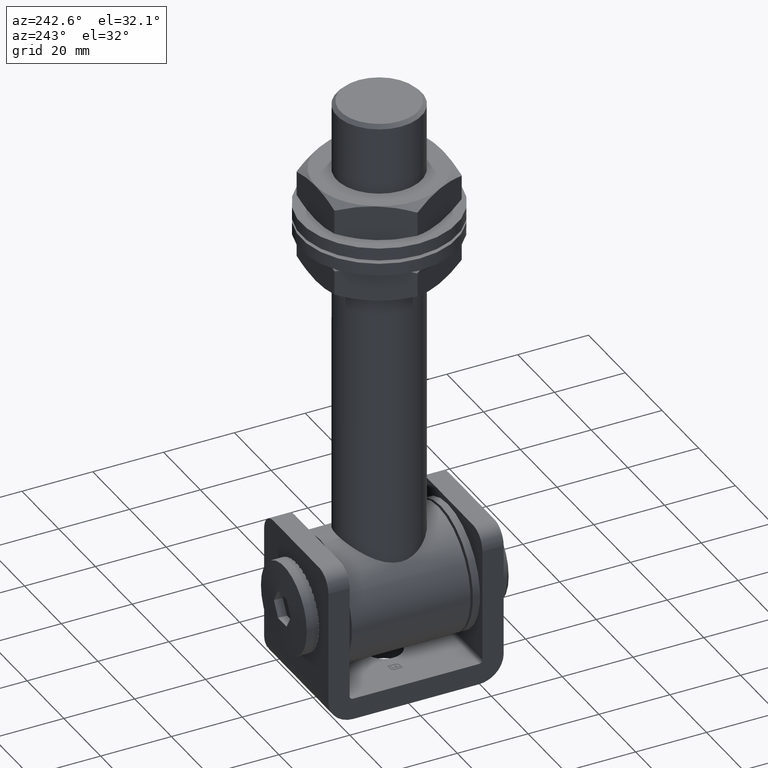
[diagram: clean part render]
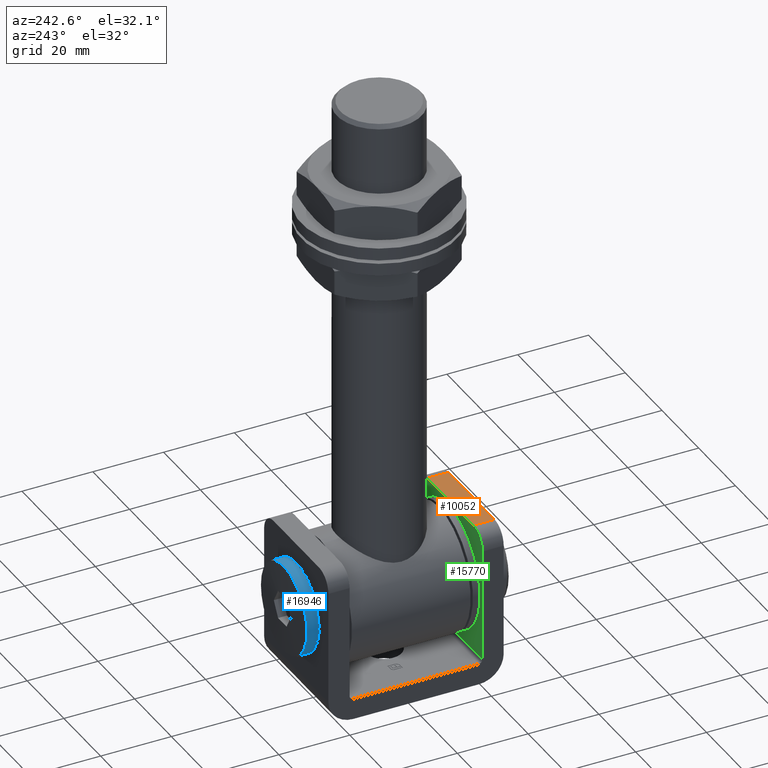
[diagram: same view with three faces highlighted in distinct colors, each labeled with its STEP entity id]
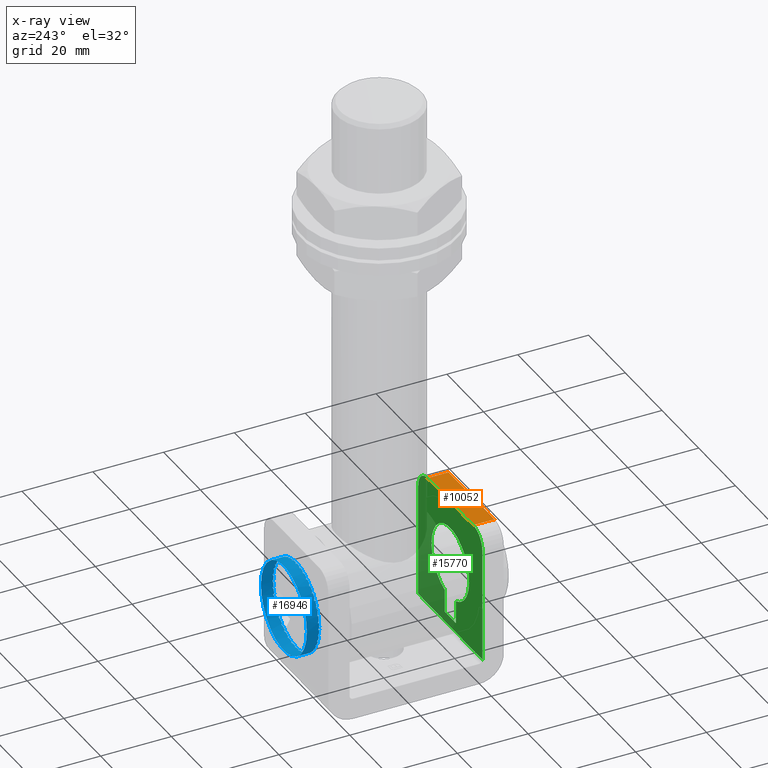
[diagram: x-ray of the same camera — body ghosted, the three highlighted faces saturated]
A machine part, auxiliary view with three faces highlighted in distinct colors.
The next image is the same camera in x-ray (body ghosted, the three faces saturated) — at least one of them is partly hidden behind the body in this view.
Their STEP definitions:

[orange] entity #10052 — the highlighted planar face has unit normal (0, 0, -1).
#145 = VECTOR ( 'NONE', #19696, 1000.000000000000000 ) ;
#1152 = CARTESIAN_POINT ( 'NONE',  ( -12.50000000000000000, -18.75000000000000355, 19.00000000000000000 ) ) ;
#3942 = EDGE_CURVE ( 'NONE', #9401, #15827, #5786, .T. ) ;
#3999 = VECTOR ( 'NONE', #4362, 1000.000000000000000 ) ;
#4045 = DIRECTION ( 'NONE',  ( -1.000000000000000000, -0.000000000000000000, -0.000000000000000000 ) ) ;
#4362 = DIRECTION ( 'NONE',  ( 0.000000000000000000, -1.000000000000000000, 0.000000000000000000 ) ) ;
#4709 = CARTESIAN_POINT ( 'NONE',  ( 12.50000000000000000, -24.75000000000000711, 19.00000000000000000 ) ) ;
#5267 = CARTESIAN_POINT ( 'NONE',  ( 17.50000000000000000, -24.75000000000000711, 19.00000000000000000 ) ) ;
#5663 = ORIENTED_EDGE ( 'NONE', *, *, #21682, .F. ) ;
#5786 = LINE ( 'NONE', #22497, #19849 ) ;
#6481 = DIRECTION ( 'NONE',  ( -0.000000000000000000, 1.000000000000000000, -0.000000000000000000 ) ) ;
#6574 = CARTESIAN_POINT ( 'NONE',  ( 12.50000000000000000, -18.75000000000000355, 19.00000000000000000 ) ) ;
#8225 = LINE ( 'NONE', #5267, #145 ) ;
#8801 = VECTOR ( 'NONE', #6481, 1000.000000000000000 ) ;
#8864 = EDGE_CURVE ( 'NONE', #15827, #13058, #10010, .T. ) ;
#9401 = VERTEX_POINT ( 'NONE', #12297 ) ;
#10010 = LINE ( 'NONE', #17066, #3999 ) ;
#10052 = ADVANCED_FACE ( 'NONE', ( #11169 ), #19364, .F. ) ;
#11105 = ORIENTED_EDGE ( 'NONE', *, *, #8864, .T. ) ;
#11169 = FACE_OUTER_BOUND ( 'NONE', #17605, .T. ) ;
#12285 = CARTESIAN_POINT ( 'NONE',  ( 17.50000000000000000, -18.75000000000000355, 19.00000000000000000 ) ) ;
#12297 = CARTESIAN_POINT ( 'NONE',  ( 12.50000000000000000, -18.75000000000000355, 19.00000000000000000 ) ) ;
#12343 = AXIS2_PLACEMENT_3D ( 'NONE', #12285, #23136, #19669 ) ;
#13058 = VERTEX_POINT ( 'NONE', #19074 ) ;
#15827 = VERTEX_POINT ( 'NONE', #1152 ) ;
#17066 = CARTESIAN_POINT ( 'NONE',  ( -12.50000000000000000, -18.75000000000000355, 19.00000000000000000 ) ) ;
#17414 = ORIENTED_EDGE ( 'NONE', *, *, #22013, .T. ) ;
#17605 = EDGE_LOOP ( 'NONE', ( #5663, #17414, #18361, #11105 ) ) ;
#18361 = ORIENTED_EDGE ( 'NONE', *, *, #3942, .T. ) ;
#19074 = CARTESIAN_POINT ( 'NONE',  ( -12.50000000000000000, -24.75000000000000711, 19.00000000000000000 ) ) ;
#19364 = PLANE ( 'NONE',  #12343 ) ;
#19490 = VERTEX_POINT ( 'NONE', #4709 ) ;
#19669 = DIRECTION ( 'NONE',  ( -1.000000000000000000, 0.000000000000000000, -0.000000000000000000 ) ) ;
#19696 = DIRECTION ( 'NONE',  ( -1.000000000000000000, -0.000000000000000000, -0.000000000000000000 ) ) ;
#19733 = LINE ( 'NONE', #6574, #8801 ) ;
#19849 = VECTOR ( 'NONE', #4045, 1000.000000000000000 ) ;
#21682 = EDGE_CURVE ( 'NONE', #19490, #13058, #8225, .T. ) ;
#22013 = EDGE_CURVE ( 'NONE', #19490, #9401, #19733, .T. ) ;
#22497 = CARTESIAN_POINT ( 'NONE',  ( 17.50000000000000000, -18.75000000000000355, 19.00000000000000000 ) ) ;
#23136 = DIRECTION ( 'NONE',  ( 0.000000000000000000, 0.000000000000000000, -1.000000000000000000 ) ) ;

[blue] entity #16946 — the highlighted cylindrical surface (bore or boss wall) has radius 12.5 mm, axis along (-0, -1, -0).
#11 = CARTESIAN_POINT ( 'NONE',  ( -10.34264749566725961, 15.30000000000000071, 7.019946066770567761 ) ) ;
#26 = EDGE_CURVE ( 'NONE', #17709, #15763, #10945, .T. ) ;
#43 = DIRECTION ( 'NONE',  ( -1.252009581588831962E-16, -1.000000000000000000, -0.000000000000000000 ) ) ;
#56 = EDGE_CURVE ( 'NONE', #21869, #10303, #11235, .T. ) ;
#65 = CARTESIAN_POINT ( 'NONE',  ( -9.117150834789587321, 14.99999999999999289, -8.551465409840316667 ) ) ;
#77 = CARTESIAN_POINT ( 'NONE',  ( 10.34264749566736263, 14.99999999999999289, 7.019946066770411441 ) ) ;
#100 =( BOUNDED_CURVE ( )  B_SPLINE_CURVE ( 3, ( #18693, #7448, #3884, #9275 ),
 .UNSPECIFIED., .F., .F. ) 
 B_SPLINE_CURVE_WITH_KNOTS ( ( 4, 4 ),
 ( 1.538790862943445470, 1.602801790646347202 ),
 .UNSPECIFIED. ) 
 CURVE ( )  GEOMETRIC_REPRESENTATION_ITEM ( )  RATIONAL_B_SPLINE_CURVE ( ( 1.000000000000000000, 0.9996585792405654480, 0.9996585792405654480, 1.000000000000000000 ) ) 
 REPRESENTATION_ITEM ( '' )  );
#126 = ORIENTED_EDGE ( 'NONE', *, *, #20863, .F. ) ;
#127 = EDGE_CURVE ( 'NONE', #20908, #16768, #6974, .T. ) ;
#140 = ORIENTED_EDGE ( 'NONE', *, *, #7146, .F. ) ;
#159 = CARTESIAN_POINT ( 'NONE',  ( 1.878014372383248116E-15, 15.00000000000000711, 0.000000000000000000 ) ) ;
#167 = EDGE_CURVE ( 'NONE', #8255, #21786, #3104, .T. ) ;
#203 = EDGE_CURVE ( 'NONE', #18443, #2001, #19040, .T. ) ;
#216 = CARTESIAN_POINT ( 'NONE',  ( -10.34264749566725605, 14.99999999999999289, 7.019946066770564208 ) ) ;
#220 = CARTESIAN_POINT ( 'NONE',  ( -8.551465409840350418, 15.30000000000000071, -9.117150834789555347 ) ) ;
#299 = CARTESIAN_POINT ( 'NONE',  ( 1.878014372383248116E-15, 15.00000000000000711, 0.000000000000000000 ) ) ;
#317 = LINE ( 'NONE', #10747, #1502 ) ;
#355 = VERTEX_POINT ( 'NONE', #16226 ) ;
#373 = AXIS2_PLACEMENT_3D ( 'NONE', #3548, #3475, #16348 ) ;
#377 = CARTESIAN_POINT ( 'NONE',  ( 12.00572493072576030, 14.99999999999999289, -3.480311607852088596 ) ) ;
#431 = CARTESIAN_POINT ( 'NONE',  ( 11.31347384992255201, 15.30000000000000071, -5.315572353671671024 ) ) ;
#435 = DIRECTION ( 'NONE',  ( -1.252009581588831962E-16, -1.000000000000000000, -0.000000000000000000 ) ) ;
#449 = CARTESIAN_POINT ( 'NONE',  ( 1.878014372383248116E-15, 15.00000000000000711, 0.000000000000000000 ) ) ;
#453 = CARTESIAN_POINT ( 'NONE',  ( 6.028377573022324576, 14.99999999999999289, 10.95028145013091603 ) ) ;
#457 = CARTESIAN_POINT ( 'NONE',  ( 10.95028145013102616, 0.000000000000000000, 6.028377573022126512 ) ) ;
#628 = DIRECTION ( 'NONE',  ( 1.000000000000000000, -1.387778780781446415E-16, 0.000000000000000000 ) ) ;
#656 = CARTESIAN_POINT ( 'NONE',  ( -7.019946066770451409, 14.99999999999999289, 10.34264749566733244 ) ) ;
#667 = CARTESIAN_POINT ( 'NONE',  ( -12.00572493072580649, 14.99999999999999289, -3.480311607851913625 ) ) ;
#672 = DIRECTION ( 'NONE',  ( -1.252009581588831962E-16, -1.000000000000000000, -0.000000000000000000 ) ) ;
#674 = VECTOR ( 'NONE', #2436, 1000.000000000000000 ) ;
#691 = LINE ( 'NONE', #17380, #14808 ) ;
#715 =( BOUNDED_CURVE ( )  B_SPLINE_CURVE ( 3, ( #656, #6468, #22853, #815 ),
 .UNSPECIFIED., .F., .T. ) 
 B_SPLINE_CURVE_WITH_KNOTS ( ( 4, 4 ),
 ( 1.538790862943445470, 1.602801790646348090 ),
 .UNSPECIFIED. ) 
 CURVE ( )  GEOMETRIC_REPRESENTATION_ITEM ( )  RATIONAL_B_SPLINE_CURVE ( ( 1.000000000000000000, 0.9996585792405654480, 0.9996585792405654480, 1.000000000000000000 ) ) 
 REPRESENTATION_ITEM ( '' )  );
#728 = VECTOR ( 'NONE', #7927, 1000.000000000000000 ) ;
#729 = CARTESIAN_POINT ( 'NONE',  ( 11.31347384992254845, 0.000000000000000000, -5.315572353671665695 ) ) ;
#780 = CARTESIAN_POINT ( 'NONE',  ( 1.878014372383248116E-15, 15.00000000000000711, 0.000000000000000000 ) ) ;
#796 = CARTESIAN_POINT ( 'NONE',  ( -10.95028145013097820, 15.30000000000000071, -6.028377573022202007 ) ) ;
#813 = VECTOR ( 'NONE', #2888, 1000.000000000000000 ) ;
#815 = CARTESIAN_POINT ( 'NONE',  ( -7.667159662270411680, 15.30000000000000071, 9.872419293833353038 ) ) ;
#847 = VERTEX_POINT ( 'NONE', #1362 ) ;
#865 = CARTESIAN_POINT ( 'NONE',  ( -10.03604123055433028, 15.20001707686837200, -7.456476118933303532 ) ) ;
#873 = VERTEX_POINT ( 'NONE', #16172 ) ;
#890 = VERTEX_POINT ( 'NONE', #12636 ) ;
#915 = VERTEX_POINT ( 'NONE', #220 ) ;
#973 = EDGE_CURVE ( 'NONE', #1415, #17709, #10439, .T. ) ;
#991 = AXIS2_PLACEMENT_3D ( 'NONE', #19832, #3096, #14205 ) ;
#1009 = DIRECTION ( 'NONE',  ( 1.000000000000000000, -1.387778780781446415E-16, 0.000000000000000000 ) ) ;
#1056 = VERTEX_POINT ( 'NONE', #10267 ) ;
#1170 = CARTESIAN_POINT ( 'NONE',  ( -9.872419293833328169, 15.30000000000000071, -7.667159662270446319 ) ) ;
#1172 = AXIS2_PLACEMENT_3D ( 'NONE', #7518, #9415, #3726 ) ;
#1186 = CIRCLE ( 'NONE', #8813, 12.49999999999999289 ) ;
#1214 = ORIENTED_EDGE ( 'NONE', *, *, #2830, .F. ) ;
#1218 = CARTESIAN_POINT ( 'NONE',  ( -7.019946066770531345, 14.99999999999999289, -10.34264749566728625 ) ) ;
#1250 = CARTESIAN_POINT ( 'NONE',  ( 12.40235521901783855, 0.000000000000000000, -1.559354039755174837 ) ) ;
#1258 = CARTESIAN_POINT ( 'NONE',  ( -6.028377573022243752, 14.99999999999999289, -10.95028145013095866 ) ) ;
#1279 = ORIENTED_EDGE ( 'NONE', *, *, #16863, .F. ) ;
#1312 = CARTESIAN_POINT ( 'NONE',  ( -12.50213460854612890, 15.20001707686837200, -0.1333788716489375803 ) ) ;
#1323 = CARTESIAN_POINT ( 'NONE',  ( 12.50213460854613601, 15.09998292313163226, -0.1333788716491192683 ) ) ;
#1353 = DIRECTION ( 'NONE',  ( -1.252009581588831962E-16, -1.000000000000000000, -0.000000000000000000 ) ) ;
#1362 = CARTESIAN_POINT ( 'NONE',  ( 0.4000000000000037415, 14.99999999999999289, 12.49359836076059516 ) ) ;
#1364 = ORIENTED_EDGE ( 'NONE', *, *, #6763, .F. ) ;
#1392 = ORIENTED_EDGE ( 'NONE', *, *, #13034, .F. ) ;
#1405 = ORIENTED_EDGE ( 'NONE', *, *, #20424, .F. ) ;
#1415 = VERTEX_POINT ( 'NONE', #2311 ) ;
#1443 = VERTEX_POINT ( 'NONE', #11307 ) ;
#1456 = ORIENTED_EDGE ( 'NONE', *, *, #18136, .F. ) ;
#1475 = CARTESIAN_POINT ( 'NONE',  ( -11.31347384992257332, 14.99999999999999289, 5.315572353671592865 ) ) ;
#1479 =( BOUNDED_CURVE ( )  B_SPLINE_CURVE ( 3, ( #17266, #9841, #17331, #22859 ),
 .UNSPECIFIED., .F., .F. ) 
 B_SPLINE_CURVE_WITH_KNOTS ( ( 4, 4 ),
 ( 1.538790862943445470, 1.602801790646347202 ),
 .UNSPECIFIED. ) 
 CURVE ( )  GEOMETRIC_REPRESENTATION_ITEM ( )  RATIONAL_B_SPLINE_CURVE ( ( 1.000000000000000000, 0.9996585792405654480, 0.9996585792405654480, 1.000000000000000000 ) ) 
 REPRESENTATION_ITEM ( '' )  );
#1502 = VECTOR ( 'NONE', #23699, 1000.000000000000000 ) ;
#1519 = CARTESIAN_POINT ( 'NONE',  ( -12.49359836076059516, 15.30000000000000071, -0.3999999999999544475 ) ) ;
#1556 = CARTESIAN_POINT ( 'NONE',  ( -11.75851133522581193, 14.99999999999999289, 4.241156820888122070 ) ) ;
#1597 = ORIENTED_EDGE ( 'NONE', *, *, #15663, .F. ) ;
#1602 = CARTESIAN_POINT ( 'NONE',  ( 12.00572493072582603, 14.99999999999999289, 3.480311607851829248 ) ) ;
#1628 = AXIS2_PLACEMENT_3D ( 'NONE', #2659, #17177, #15468 ) ;
#1633 = ORIENTED_EDGE ( 'NONE', *, *, #20192, .F. ) ;
#1659 = VERTEX_POINT ( 'NONE', #6977 ) ;
#1663 = VECTOR ( 'NONE', #19335, 1000.000000000000000 ) ;
#1665 = CARTESIAN_POINT ( 'NONE',  ( -11.75851133522581193, 14.99999999999999289, 4.241156820888122070 ) ) ;
#1688 = EDGE_CURVE ( 'NONE', #890, #7148, #4412, .T. ) ;
#1704 = CARTESIAN_POINT ( 'NONE',  ( 4.241156820887916012, 0.000000000000000000, -11.75851133522588832 ) ) ;
#1727 = DIRECTION ( 'NONE',  ( -1.252009581588831962E-16, -1.000000000000000000, -0.000000000000000000 ) ) ;
#1737 = DIRECTION ( 'NONE',  ( -1.252009581588831962E-16, -1.000000000000000000, -0.000000000000000000 ) ) ;
#1787 = EDGE_CURVE ( 'NONE', #13976, #15510, #18453, .T. ) ;
#1788 = CIRCLE ( 'NONE', #1172, 12.49999999999999289 ) ;
#1807 = DIRECTION ( 'NONE',  ( 1.000000000000000000, -1.387778780781446415E-16, 0.000000000000000000 ) ) ;
#1823 = EDGE_CURVE ( 'NONE', #18640, #2657, #18774, .T. ) ;
#1854 = CIRCLE ( 'NONE', #9864, 12.49999999999999289 ) ;
#1887 = VECTOR ( 'NONE', #7263, 1000.000000000000000 ) ;
#1903 = ORIENTED_EDGE ( 'NONE', *, *, #18336, .F. ) ;
#1912 = ORIENTED_EDGE ( 'NONE', *, *, #56, .F. ) ;
#1913 =( BOUNDED_CURVE ( )  B_SPLINE_CURVE ( 3, ( #15603, #23232, #865, #1170 ),
 .UNSPECIFIED., .F., .F. ) 
 B_SPLINE_CURVE_WITH_KNOTS ( ( 4, 4 ),
 ( 1.538790862943445470, 1.602801790646347202 ),
 .UNSPECIFIED. ) 
 CURVE ( )  GEOMETRIC_REPRESENTATION_ITEM ( )  RATIONAL_B_SPLINE_CURVE ( ( 1.000000000000000000, 0.9996585792405654480, 0.9996585792405654480, 1.000000000000000000 ) ) 
 REPRESENTATION_ITEM ( '' )  );
#1971 = DIRECTION ( 'NONE',  ( -1.252009581588831962E-16, -1.000000000000000000, -0.000000000000000000 ) ) ;
#2001 = VERTEX_POINT ( 'NONE', #11723 ) ;
#2077 = EDGE_CURVE ( 'NONE', #7148, #4165, #5829, .T. ) ;
#2088 = DIRECTION ( 'NONE',  ( -1.252009581588831962E-16, -1.000000000000000000, -0.000000000000000000 ) ) ;
#2089 = VECTOR ( 'NONE', #12841, 1000.000000000000000 ) ;
#2092 = DIRECTION ( 'NONE',  ( 1.000000000000000000, -1.387778780781446415E-16, 0.000000000000000000 ) ) ;
#2113 = CARTESIAN_POINT ( 'NONE',  ( -7.019946066770451409, 14.99999999999999289, 10.34264749566733244 ) ) ;
#2150 = CARTESIAN_POINT ( 'NONE',  ( -7.667159662270411680, 15.30000000000000071, 9.872419293833353038 ) ) ;
#2189 = LINE ( 'NONE', #21890, #23177 ) ;
#2222 = LINE ( 'NONE', #729, #4245 ) ;
#2233 = VERTEX_POINT ( 'NONE', #7353 ) ;
#2246 = DIRECTION ( 'NONE',  ( 1.000000000000000000, -1.387778780781446415E-16, 0.000000000000000000 ) ) ;
#2258 = DIRECTION ( 'NONE',  ( 1.000000000000000000, -1.387778780781446415E-16, 0.000000000000000000 ) ) ;
#2262 = CIRCLE ( 'NONE', #22277, 12.49999999999999289 ) ;
#2268 = DIRECTION ( 'NONE',  ( -1.252009581588831962E-16, -1.000000000000000000, -0.000000000000000000 ) ) ;
#2290 = ORIENTED_EDGE ( 'NONE', *, *, #10820, .F. ) ;
#2311 = CARTESIAN_POINT ( 'NONE',  ( -2.349504712231060388, 15.30000000000000071, 12.27720764698569589 ) ) ;
#2345 = DIRECTION ( 'NONE',  ( -1.252009581588831962E-16, -1.000000000000000000, -0.000000000000000000 ) ) ;
#2393 = ORIENTED_EDGE ( 'NONE', *, *, #18107, .F. ) ;
#2435 = DIRECTION ( 'NONE',  ( -1.252009581588831962E-16, -1.000000000000000000, -0.000000000000000000 ) ) ;
#2436 = DIRECTION ( 'NONE',  ( -1.252009581588831962E-16, -1.000000000000000000, -0.000000000000000000 ) ) ;
#2448 = CARTESIAN_POINT ( 'NONE',  ( 10.34264749566736263, 14.99999999999999289, 7.019946066770411441 ) ) ;
#2505 =( BOUNDED_CURVE ( )  B_SPLINE_CURVE ( 3, ( #7557, #15013, #5545, #7304 ),
 .UNSPECIFIED., .F., .F. ) 
 B_SPLINE_CURVE_WITH_KNOTS ( ( 4, 4 ),
 ( 1.538790862943445692, 1.602801790646347424 ),
 .UNSPECIFIED. ) 
 CURVE ( )  GEOMETRIC_REPRESENTATION_ITEM ( )  RATIONAL_B_SPLINE_CURVE ( ( 1.000000000000000000, 0.9996585792405654480, 0.9996585792405654480, 1.000000000000000000 ) ) 
 REPRESENTATION_ITEM ( '' )  );
#2538 = CIRCLE ( 'NONE', #4687, 12.49999999999999289 ) ;
#2543 = EDGE_CURVE ( 'NONE', #11799, #13314, #3187, .T. ) ;
#2556 = DIRECTION ( 'NONE',  ( 1.000000000000000000, -1.387778780781446415E-16, 0.000000000000000000 ) ) ;
#2585 = VERTEX_POINT ( 'NONE', #22520 ) ;
#2636 = CARTESIAN_POINT ( 'NONE',  ( 1.878014372383248116E-15, 15.00000000000000711, 0.000000000000000000 ) ) ;
#2642 = CARTESIAN_POINT ( 'NONE',  ( 1.878014372383248116E-15, 15.00000000000000711, 0.000000000000000000 ) ) ;
#2657 = VERTEX_POINT ( 'NONE', #3030 ) ;
#2659 = CARTESIAN_POINT ( 'NONE',  ( 0.000000000000000000, 0.000000000000000000, 0.000000000000000000 ) ) ;
#2663 = CARTESIAN_POINT ( 'NONE',  ( -12.00572493072577629, 14.99999999999999289, 3.480311607852001110 ) ) ;
#2672 = EDGE_CURVE ( 'NONE', #11406, #890, #5624, .T. ) ;
#2673 = CARTESIAN_POINT ( 'NONE',  ( 9.117150834789466529, 14.99999999999999289, -8.551465409840444565 ) ) ;
#2676 = DIRECTION ( 'NONE',  ( 1.000000000000000000, -1.387778780781446415E-16, 0.000000000000000000 ) ) ;
#2701 = EDGE_CURVE ( 'NONE', #15792, #12562, #8092, .T. ) ;
#2718 = VECTOR ( 'NONE', #23431, 1000.000000000000000 ) ;
#2737 = CARTESIAN_POINT ( 'NONE',  ( 11.20003624309046586, 15.09998292313163226, 5.557008893916701275 ) ) ;
#2741 = CARTESIAN_POINT ( 'NONE',  ( 9.117150834789642389, 14.99999999999999289, 8.551465409840242060 ) ) ;
#2821 = EDGE_CURVE ( 'NONE', #13314, #1415, #7998, .T. ) ;
#2830 = EDGE_CURVE ( 'NONE', #17951, #16570, #9540, .T. ) ;
#2872 = CARTESIAN_POINT ( 'NONE',  ( -1.559354039755036725, 15.30000000000000071, -12.40235521901784566 ) ) ;
#2880 = CARTESIAN_POINT ( 'NONE',  ( -0.3999999999999961919, 15.30000000000000071, 12.49359836076059516 ) ) ;
#2888 = DIRECTION ( 'NONE',  ( -1.252009581588831962E-16, -1.000000000000000000, -0.000000000000000000 ) ) ;
#2937 =( BOUNDED_CURVE ( )  B_SPLINE_CURVE ( 3, ( #667, #20787, #9545, #6034 ),
 .UNSPECIFIED., .F., .T. ) 
 B_SPLINE_CURVE_WITH_KNOTS ( ( 4, 4 ),
 ( 1.538790862943445470, 1.602801790646347202 ),
 .UNSPECIFIED. ) 
 CURVE ( )  GEOMETRIC_REPRESENTATION_ITEM ( )  RATIONAL_B_SPLINE_CURVE ( ( 1.000000000000000000, 0.9996585792405654480, 0.9996585792405654480, 1.000000000000000000 ) ) 
 REPRESENTATION_ITEM ( '' )  );
#2940 = CARTESIAN_POINT ( 'NONE',  ( -3.480311607851952704, 14.99999999999999289, -12.00572493072577984 ) ) ;
#2945 = VERTEX_POINT ( 'NONE', #13575 ) ;
#3003 = CARTESIAN_POINT ( 'NONE',  ( -11.07893076190118187, 15.20001707686837378, -5.794691783573043153 ) ) ;
#3030 = CARTESIAN_POINT ( 'NONE',  ( 7.019946066770383908, 14.99999999999999289, -10.34264749566739638 ) ) ;
#3031 = ORIENTED_EDGE ( 'NONE', *, *, #7469, .F. ) ;
#3033 = CARTESIAN_POINT ( 'NONE',  ( 10.03604123055422015, 15.09998292313163226, -7.456476118933456299 ) ) ;
#3096 = DIRECTION ( 'NONE',  ( -1.252009581588831962E-16, -1.000000000000000000, -0.000000000000000000 ) ) ;
#3101 = LINE ( 'NONE', #12204, #13255 ) ;
#3104 =( BOUNDED_CURVE ( )  B_SPLINE_CURVE ( 3, ( #20212, #11039, #16777, #11 ),
 .UNSPECIFIED., .F., .T. ) 
 B_SPLINE_CURVE_WITH_KNOTS ( ( 4, 4 ),
 ( 1.538790862943445470, 1.602801790646347202 ),
 .UNSPECIFIED. ) 
 CURVE ( )  GEOMETRIC_REPRESENTATION_ITEM ( )  RATIONAL_B_SPLINE_CURVE ( ( 1.000000000000000000, 0.9996585792405654480, 0.9996585792405654480, 1.000000000000000000 ) ) 
 REPRESENTATION_ITEM ( '' )  );
#3126 = DIRECTION ( 'NONE',  ( -1.252009581588831962E-16, -1.000000000000000000, -0.000000000000000000 ) ) ;
#3129 = LINE ( 'NONE', #1704, #1887 ) ;
#3187 = CIRCLE ( 'NONE', #4317, 12.49999999999999289 ) ;
#3188 = VERTEX_POINT ( 'NONE', #16294 ) ;
#3205 = CARTESIAN_POINT ( 'NONE',  ( 1.878014372383248116E-15, 15.00000000000000711, 0.000000000000000000 ) ) ;
#3230 = CARTESIAN_POINT ( 'NONE',  ( 1.878014372383248116E-15, 15.00000000000000711, 0.000000000000000000 ) ) ;
#3235 =( BOUNDED_CURVE ( )  B_SPLINE_CURVE ( 3, ( #11335, #5898, #6077, #17235 ),
 .UNSPECIFIED., .F., .F. ) 
 B_SPLINE_CURVE_WITH_KNOTS ( ( 4, 4 ),
 ( 1.538790862943445470, 1.602801790646348090 ),
 .UNSPECIFIED. ) 
 CURVE ( )  GEOMETRIC_REPRESENTATION_ITEM ( )  RATIONAL_B_SPLINE_CURVE ( ( 1.000000000000000000, 0.9996585792405654480, 0.9996585792405654480, 1.000000000000000000 ) ) 
 REPRESENTATION_ITEM ( '' )  );
#3242 = ORIENTED_EDGE ( 'NONE', *, *, #13907, .F. ) ;
#3244 = DIRECTION ( 'NONE',  ( -1.252009581588831962E-16, -1.000000000000000000, -0.000000000000000000 ) ) ;
#3273 = DIRECTION ( 'NONE',  ( 1.000000000000000000, -1.387778780781446415E-16, 0.000000000000000000 ) ) ;
#3315 = ORIENTED_EDGE ( 'NONE', *, *, #20978, .F. ) ;
#3324 = LINE ( 'NONE', #8625, #6512 ) ;
#3366 = CARTESIAN_POINT ( 'NONE',  ( 9.117150834789464753, 0.000000000000000000, -8.551465409840444565 ) ) ;
#3378 = CARTESIAN_POINT ( 'NONE',  ( 3.736521214986172623, 15.20001707686837022, 11.93145292508701516 ) ) ;
#3397 = CARTESIAN_POINT ( 'NONE',  ( 5.794691783572924138, 15.20001707686837022, -11.07893076190124759 ) ) ;
#3407 = DIRECTION ( 'NONE',  ( -1.252009581588831962E-16, -1.000000000000000000, -0.000000000000000000 ) ) ;
#3409 = LINE ( 'NONE', #1250, #813 ) ;
#3425 = VERTEX_POINT ( 'NONE', #20781 ) ;
#3438 = ORIENTED_EDGE ( 'NONE', *, *, #11233, .F. ) ;
#3440 = EDGE_CURVE ( 'NONE', #18163, #7413, #10354, .T. ) ;
#3458 = CARTESIAN_POINT ( 'NONE',  ( -5.315572353671549344, 15.30000000000000071, -11.31347384992259641 ) ) ;
#3475 = DIRECTION ( 'NONE',  ( -1.252009581588831962E-16, -1.000000000000000000, -0.000000000000000000 ) ) ;
#3482 = DIRECTION ( 'NONE',  ( -1.252009581588831962E-16, -1.000000000000000000, -0.000000000000000000 ) ) ;
#3488 = CARTESIAN_POINT ( 'NONE',  ( 1.878014372383248116E-15, 15.00000000000000711, 0.000000000000000000 ) ) ;
#3513 = CARTESIAN_POINT ( 'NONE',  ( -3.480311607851955813, 0.000000000000000000, -12.00572493072578695 ) ) ;
#3536 = LINE ( 'NONE', #5869, #2089 ) ;
#3548 = CARTESIAN_POINT ( 'NONE',  ( 1.878014372383248116E-15, 15.00000000000000711, 0.000000000000000000 ) ) ;
#3552 =( BOUNDED_CURVE ( )  B_SPLINE_CURVE ( 3, ( #4982, #17852, #6833, #10494 ),
 .UNSPECIFIED., .F., .F. ) 
 B_SPLINE_CURVE_WITH_KNOTS ( ( 4, 4 ),
 ( 1.538790862943445470, 1.602801790646347202 ),
 .UNSPECIFIED. ) 
 CURVE ( )  GEOMETRIC_REPRESENTATION_ITEM ( )  RATIONAL_B_SPLINE_CURVE ( ( 1.000000000000000000, 0.9996585792405654480, 0.9996585792405654480, 1.000000000000000000 ) ) 
 REPRESENTATION_ITEM ( '' )  );
#3580 = CIRCLE ( 'NONE', #22110, 12.49999999999999289 ) ;
#3611 = ORIENTED_EDGE ( 'NONE', *, *, #10692, .F. ) ;
#3630 = AXIS2_PLACEMENT_3D ( 'NONE', #3230, #12655, #10795 ) ;
#3643 = FACE_OUTER_BOUND ( 'NONE', #22697, .T. ) ;
#3650 = VERTEX_POINT ( 'NONE', #6861 ) ;
#3680 = EDGE_CURVE ( 'NONE', #11402, #16117, #14962, .T. ) ;
#3726 = DIRECTION ( 'NONE',  ( 1.000000000000000000, -1.387778780781446415E-16, 0.000000000000000000 ) ) ;
#3828 = EDGE_CURVE ( 'NONE', #9383, #7960, #10471, .T. ) ;
#3829 = VERTEX_POINT ( 'NONE', #216 ) ;
#3833 = DIRECTION ( 'NONE',  ( -1.252009581588831962E-16, -1.000000000000000000, -0.000000000000000000 ) ) ;
#3872 = CARTESIAN_POINT ( 'NONE',  ( 8.551465409840410814, 0.000000000000000000, 9.117150834789493175 ) ) ;
#3873 = VECTOR ( 'NONE', #4761, 1000.000000000000000 ) ;
#3884 = CARTESIAN_POINT ( 'NONE',  ( 5.557008893916908221, 15.20001707686837022, 11.20003624309035928 ) ) ;
#3893 = CARTESIAN_POINT ( 'NONE',  ( -3.480311607851862554, 14.99999999999999289, 12.00572493072581359 ) ) ;
#3943 = CARTESIAN_POINT ( 'NONE',  ( 11.93145292508708799, 15.09998292313163404, 3.736521214985957684 ) ) ;
#3979 = VECTOR ( 'NONE', #22597, 1000.000000000000000 ) ;
#3983 = VERTEX_POINT ( 'NONE', #5882 ) ;
#3992 = DIRECTION ( 'NONE',  ( -1.252009581588831962E-16, -1.000000000000000000, -0.000000000000000000 ) ) ;
#4039 = CARTESIAN_POINT ( 'NONE',  ( -2.087501495758221193, 15.20001707686837022, 12.32734753297790675 ) ) ;
#4043 = CARTESIAN_POINT ( 'NONE',  ( 11.75851133522587766, 15.30000000000000071, 4.241156820887956869 ) ) ;
#4068 = ORIENTED_EDGE ( 'NONE', *, *, #15942, .F. ) ;
#4098 = CIRCLE ( 'NONE', #7426, 12.49999999999999289 ) ;
#4106 = DIRECTION ( 'NONE',  ( -1.252009581588831962E-16, -1.000000000000000000, -0.000000000000000000 ) ) ;
#4126 = ORIENTED_EDGE ( 'NONE', *, *, #23348, .F. ) ;
#4129 = EDGE_CURVE ( 'NONE', #4922, #13358, #23911, .T. ) ;
#4138 = DIRECTION ( 'NONE',  ( -1.252009581588831962E-16, -1.000000000000000000, -0.000000000000000000 ) ) ;
#4161 = CARTESIAN_POINT ( 'NONE',  ( 1.878014372383248116E-15, 15.00000000000000711, 0.000000000000000000 ) ) ;
#4165 = VERTEX_POINT ( 'NONE', #22748 ) ;
#4184 = VERTEX_POINT ( 'NONE', #17675 ) ;
#4187 = VERTEX_POINT ( 'NONE', #8423 ) ;
#4202 = ORIENTED_EDGE ( 'NONE', *, *, #9139, .F. ) ;
#4245 = VECTOR ( 'NONE', #21084, 1000.000000000000000 ) ;
#4288 = DIRECTION ( 'NONE',  ( -1.252009581588831962E-16, -1.000000000000000000, -0.000000000000000000 ) ) ;
#4317 = AXIS2_PLACEMENT_3D ( 'NONE', #6391, #2345, #7835 ) ;
#4373 = VECTOR ( 'NONE', #2088, 1000.000000000000000 ) ;
#4412 = LINE ( 'NONE', #14816, #9847 ) ;
#4418 = EDGE_CURVE ( 'NONE', #13078, #12807, #10483, .T. ) ;
#4430 = CARTESIAN_POINT ( 'NONE',  ( 1.878014372383248116E-15, 15.00000000000000711, 0.000000000000000000 ) ) ;
#4443 =( BOUNDED_CURVE ( )  B_SPLINE_CURVE ( 3, ( #19024, #9611, #9851, #6186 ),
 .UNSPECIFIED., .F., .F. ) 
 B_SPLINE_CURVE_WITH_KNOTS ( ( 4, 4 ),
 ( 1.538790862943445470, 1.602801790646347202 ),
 .UNSPECIFIED. ) 
 CURVE ( )  GEOMETRIC_REPRESENTATION_ITEM ( )  RATIONAL_B_SPLINE_CURVE ( ( 1.000000000000000000, 0.9996585792405654480, 0.9996585792405654480, 1.000000000000000000 ) ) 
 REPRESENTATION_ITEM ( '' )  );
#4447 = EDGE_CURVE ( 'NONE', #16441, #15823, #14539, .T. ) ;
#4460 = LINE ( 'NONE', #457, #674 ) ;
#4470 = ORIENTED_EDGE ( 'NONE', *, *, #22711, .F. ) ;
#4493 = VECTOR ( 'NONE', #3407, 1000.000000000000000 ) ;
#4522 = EDGE_CURVE ( 'NONE', #13697, #12201, #6088, .T. ) ;
#4533 = DIRECTION ( 'NONE',  ( -1.252009581588831962E-16, -1.000000000000000000, -0.000000000000000000 ) ) ;
#4561 = EDGE_CURVE ( 'NONE', #9659, #11406, #3580, .T. ) ;
#4631 = CARTESIAN_POINT ( 'NONE',  ( -7.019946066770529569, 0.000000000000000000, -10.34264749566728447 ) ) ;
#4637 = CARTESIAN_POINT ( 'NONE',  ( 12.00572493072576030, 15.30000000000000071, -3.480311607852088596 ) ) ;
#4649 = CARTESIAN_POINT ( 'NONE',  ( 7.667159662270347731, 14.99999999999999289, -9.872419293833424092 ) ) ;
#4687 = AXIS2_PLACEMENT_3D ( 'NONE', #3205, #3126, #16087 ) ;
#4715 = CARTESIAN_POINT ( 'NONE',  ( 11.07893076190122805, 15.20001707686836845, 5.794691783572960553 ) ) ;
#4723 = ORIENTED_EDGE ( 'NONE', *, *, #11099, .F. ) ;
#4732 = CARTESIAN_POINT ( 'NONE',  ( -12.49359836076058805, 14.99999999999999289, 0.4000000000000454858 ) ) ;
#4761 = DIRECTION ( 'NONE',  ( -1.252009581588831962E-16, -1.000000000000000000, -0.000000000000000000 ) ) ;
#4811 = CARTESIAN_POINT ( 'NONE',  ( -12.00572493072580649, 14.99999999999999289, -3.480311607851913625 ) ) ;
#4824 = DIRECTION ( 'NONE',  ( 1.000000000000000000, -1.387778780781446415E-16, 0.000000000000000000 ) ) ;
#4835 = VERTEX_POINT ( 'NONE', #17602 ) ;
#4878 =( BOUNDED_CURVE ( )  B_SPLINE_CURVE ( 3, ( #4956, #15959, #3397, #20197 ),
 .UNSPECIFIED., .F., .F. ) 
 B_SPLINE_CURVE_WITH_KNOTS ( ( 4, 4 ),
 ( 1.538790862943445470, 1.602801790646347202 ),
 .UNSPECIFIED. ) 
 CURVE ( )  GEOMETRIC_REPRESENTATION_ITEM ( )  RATIONAL_B_SPLINE_CURVE ( ( 1.000000000000000000, 0.9996585792405654480, 0.9996585792405654480, 1.000000000000000000 ) ) 
 REPRESENTATION_ITEM ( '' )  );
#4922 = VERTEX_POINT ( 'NONE', #10500 ) ;
#4931 = CARTESIAN_POINT ( 'NONE',  ( -12.27720764698567812, 14.99999999999999289, -2.349504712231101689 ) ) ;
#4951 = VERTEX_POINT ( 'NONE', #8357 ) ;
#4956 = CARTESIAN_POINT ( 'NONE',  ( 5.315572353671390360, 14.99999999999999289, -11.31347384992267457 ) ) ;
#4982 = CARTESIAN_POINT ( 'NONE',  ( 3.480311607851789724, 14.99999999999999289, -12.00572493072583313 ) ) ;
#5024 = CARTESIAN_POINT ( 'NONE',  ( 12.36907763784602921, 15.20001707686836845, -1.824027982939576686 ) ) ;
#5027 =( BOUNDED_CURVE ( )  B_SPLINE_CURVE ( 3, ( #1602, #3943, #15035, #4043 ),
 .UNSPECIFIED., .F., .F. ) 
 B_SPLINE_CURVE_WITH_KNOTS ( ( 4, 4 ),
 ( 1.538790862943445470, 1.602801790646347202 ),
 .UNSPECIFIED. ) 
 CURVE ( )  GEOMETRIC_REPRESENTATION_ITEM ( )  RATIONAL_B_SPLINE_CURVE ( ( 1.000000000000000000, 0.9996585792405654480, 0.9996585792405654480, 1.000000000000000000 ) ) 
 REPRESENTATION_ITEM ( '' )  );
#5049 = CARTESIAN_POINT ( 'NONE',  ( 12.50213460854613601, 15.20001707686836845, 0.1333788716488502890 ) ) ;
#5051 = AXIS2_PLACEMENT_3D ( 'NONE', #8936, #11171, #2092 ) ;
#5057 = AXIS2_PLACEMENT_3D ( 'NONE', #23252, #17875, #14165 ) ;
#5126 = ORIENTED_EDGE ( 'NONE', *, *, #21678, .F. ) ;
#5131 = CARTESIAN_POINT ( 'NONE',  ( 0.4000000000000000222, 15.30000000000000071, -12.49359836076059516 ) ) ;
#5187 = ORIENTED_EDGE ( 'NONE', *, *, #21218, .F. ) ;
#5224 = CARTESIAN_POINT ( 'NONE',  ( 3.480311607852046407, 14.99999999999999289, 12.00572493072577096 ) ) ;
#5226 = DIRECTION ( 'NONE',  ( -1.252009581588831962E-16, -1.000000000000000000, -0.000000000000000000 ) ) ;
#5254 = ORIENTED_EDGE ( 'NONE', *, *, #167, .F. ) ;
#5258 = DIRECTION ( 'NONE',  ( -1.252009581588831962E-16, -1.000000000000000000, -0.000000000000000000 ) ) ;
#5276 = VERTEX_POINT ( 'NONE', #11825 ) ;
#5322 = EDGE_CURVE ( 'NONE', #15510, #13078, #14792, .T. ) ;
#5324 = CARTESIAN_POINT ( 'NONE',  ( -5.794691783573082233, 15.09998292313163581, -11.07893076190116055 ) ) ;
#5367 = CARTESIAN_POINT ( 'NONE',  ( 1.878014372383248116E-15, 15.00000000000000711, 0.000000000000000000 ) ) ;
#5370 = ORIENTED_EDGE ( 'NONE', *, *, #23484, .F. ) ;
#5375 = AXIS2_PLACEMENT_3D ( 'NONE', #4430, #18738, #2246 ) ;
#5418 = ORIENTED_EDGE ( 'NONE', *, *, #18937, .F. ) ;
#5439 = DIRECTION ( 'NONE',  ( -1.252009581588831962E-16, -1.000000000000000000, -0.000000000000000000 ) ) ;
#5449 = ORIENTED_EDGE ( 'NONE', *, *, #5623, .F. ) ;
#5527 = CIRCLE ( 'NONE', #17111, 12.49999999999999289 ) ;
#5534 = VERTEX_POINT ( 'NONE', #12716 ) ;
#5545 = CARTESIAN_POINT ( 'NONE',  ( 8.934657265619891930, 15.20001707686837022, -8.746031056400088488 ) ) ;
#5547 = DIRECTION ( 'NONE',  ( -1.252009581588831962E-16, -1.000000000000000000, -0.000000000000000000 ) ) ;
#5575 = ORIENTED_EDGE ( 'NONE', *, *, #9500, .F. ) ;
#5592 = VERTEX_POINT ( 'NONE', #11093 ) ;
#5623 = EDGE_CURVE ( 'NONE', #4184, #1056, #19083, .T. ) ;
#5624 =( BOUNDED_CURVE ( )  B_SPLINE_CURVE ( 3, ( #21229, #8442, #13914, #19305 ),
 .UNSPECIFIED., .F., .T. ) 
 B_SPLINE_CURVE_WITH_KNOTS ( ( 4, 4 ),
 ( 1.538790862943445470, 1.602801790646347202 ),
 .UNSPECIFIED. ) 
 CURVE ( )  GEOMETRIC_REPRESENTATION_ITEM ( )  RATIONAL_B_SPLINE_CURVE ( ( 1.000000000000000000, 0.9996585792405654480, 0.9996585792405654480, 1.000000000000000000 ) ) 
 REPRESENTATION_ITEM ( '' )  );
#5649 = DIRECTION ( 'NONE',  ( -1.252009581588831962E-16, -1.000000000000000000, -0.000000000000000000 ) ) ;
#5679 = DIRECTION ( 'NONE',  ( -1.252009581588831962E-16, -1.000000000000000000, -0.000000000000000000 ) ) ;
#5711 = CARTESIAN_POINT ( 'NONE',  ( -9.117150834789523373, 0.000000000000000000, 8.551465409840382392 ) ) ;
#5738 = CARTESIAN_POINT ( 'NONE',  ( -12.27720764698567457, 15.30000000000000071, -2.349504712231100800 ) ) ;
#5764 = VERTEX_POINT ( 'NONE', #1519 ) ;
#5772 = VERTEX_POINT ( 'NONE', #16806 ) ;
#5803 = CIRCLE ( 'NONE', #20406, 12.49999999999999289 ) ;
#5829 = CIRCLE ( 'NONE', #13971, 12.49999999999999289 ) ;
#5832 = LINE ( 'NONE', #5711, #7534 ) ;
#5869 = CARTESIAN_POINT ( 'NONE',  ( 6.028377573022089209, 0.000000000000000000, -10.95028145013104748 ) ) ;
#5882 = CARTESIAN_POINT ( 'NONE',  ( 0.4000000000000000222, 14.99999999999999289, -12.49359836076059516 ) ) ;
#5898 = CARTESIAN_POINT ( 'NONE',  ( -3.990222905021802990, 15.09998292313162160, -11.84902024902686257 ) ) ;
#5941 = LINE ( 'NONE', #15267, #728 ) ;
#5972 = CARTESIAN_POINT ( 'NONE',  ( -12.32734753297789609, 15.20001707686837200, -2.087501495758264269 ) ) ;
#6034 = CARTESIAN_POINT ( 'NONE',  ( -11.75851133522585279, 15.30000000000000071, -4.241156820888039469 ) ) ;
#6052 = CARTESIAN_POINT ( 'NONE',  ( -1.824027982939345538, 15.09998292313163404, 12.36907763784605940 ) ) ;
#6077 = CARTESIAN_POINT ( 'NONE',  ( -3.736521214986075812, 15.20001707686836134, -11.93145292508704536 ) ) ;
#6088 =( BOUNDED_CURVE ( )  B_SPLINE_CURVE ( 3, ( #15041, #16993, #5972, #5738 ),
 .UNSPECIFIED., .F., .F. ) 
 B_SPLINE_CURVE_WITH_KNOTS ( ( 4, 4 ),
 ( 1.538790862943445470, 1.602801790646347202 ),
 .UNSPECIFIED. ) 
 CURVE ( )  GEOMETRIC_REPRESENTATION_ITEM ( )  RATIONAL_B_SPLINE_CURVE ( ( 1.000000000000000000, 0.9996585792405654480, 0.9996585792405654480, 1.000000000000000000 ) ) 
 REPRESENTATION_ITEM ( '' )  );
#6123 = CARTESIAN_POINT ( 'NONE',  ( 1.878014372383248116E-15, 15.00000000000000711, 0.000000000000000000 ) ) ;
#6141 = DIRECTION ( 'NONE',  ( 1.000000000000000000, -1.387778780781446415E-16, 0.000000000000000000 ) ) ;
#6186 = CARTESIAN_POINT ( 'NONE',  ( 12.00572493072576030, 15.30000000000000071, -3.480311607852088596 ) ) ;
#6210 =( BOUNDED_CURVE ( )  B_SPLINE_CURVE ( 3, ( #17836, #12180, #3003, #6984 ),
 .UNSPECIFIED., .F., .T. ) 
 B_SPLINE_CURVE_WITH_KNOTS ( ( 4, 4 ),
 ( 1.538790862943445470, 1.602801790646347424 ),
 .UNSPECIFIED. ) 
 CURVE ( )  GEOMETRIC_REPRESENTATION_ITEM ( )  RATIONAL_B_SPLINE_CURVE ( ( 1.000000000000000000, 0.9996585792405654480, 0.9996585792405654480, 1.000000000000000000 ) ) 
 REPRESENTATION_ITEM ( '' )  );
#6228 = CIRCLE ( 'NONE', #13569, 12.49999999999999289 ) ;
#6233 = AXIS2_PLACEMENT_3D ( 'NONE', #13813, #15652, #8412 ) ;
#6252 = ORIENTED_EDGE ( 'NONE', *, *, #17644, .F. ) ;
#6278 = EDGE_CURVE ( 'NONE', #6352, #18640, #3536, .T. ) ;
#6290 = CARTESIAN_POINT ( 'NONE',  ( -0.1333788716489792692, 15.20001707686837022, 12.50213460854613423 ) ) ;
#6352 = VERTEX_POINT ( 'NONE', #16541 ) ;
#6367 = CARTESIAN_POINT ( 'NONE',  ( 1.559354039755129540, 15.30000000000000071, 12.40235521901784210 ) ) ;
#6384 = ORIENTED_EDGE ( 'NONE', *, *, #12394, .F. ) ;
#6391 = CARTESIAN_POINT ( 'NONE',  ( 1.878014372383248116E-15, 15.00000000000000711, 0.000000000000000000 ) ) ;
#6403 = CARTESIAN_POINT ( 'NONE',  ( 1.559354039754859755, 14.99999999999999289, -12.40235521901787585 ) ) ;
#6409 = DIRECTION ( 'NONE',  ( -1.252009581588831962E-16, -1.000000000000000000, -0.000000000000000000 ) ) ;
#6431 = CARTESIAN_POINT ( 'NONE',  ( 1.878014372383248116E-15, 15.00000000000000711, 0.000000000000000000 ) ) ;
#6468 = CARTESIAN_POINT ( 'NONE',  ( -7.240664571224101564, 15.09998292313163581, 10.19283749799972583 ) ) ;
#6483 = VERTEX_POINT ( 'NONE', #10502 ) ;
#6499 = AXIS2_PLACEMENT_3D ( 'NONE', #23244, #12391, #6853 ) ;
#6512 = VECTOR ( 'NONE', #12544, 1000.000000000000000 ) ;
#6516 = ORIENTED_EDGE ( 'NONE', *, *, #15695, .F. ) ;
#6521 = ORIENTED_EDGE ( 'NONE', *, *, #2543, .F. ) ;
#6623 = CARTESIAN_POINT ( 'NONE',  ( 3.480311607851789724, 14.99999999999999289, -12.00572493072583313 ) ) ;
#6640 = CARTESIAN_POINT ( 'NONE',  ( 2.349504712231238912, 14.99999999999999289, 12.27720764698565503 ) ) ;
#6672 = EDGE_CURVE ( 'NONE', #7960, #23679, #317, .T. ) ;
#6678 = LINE ( 'NONE', #22784, #9535 ) ;
#6748 = CIRCLE ( 'NONE', #5375, 12.49999999999999289 ) ;
#6763 = EDGE_CURVE ( 'NONE', #20889, #21157, #1788, .T. ) ;
#6780 = DIRECTION ( 'NONE',  ( -1.252009581588831962E-16, -1.000000000000000000, -0.000000000000000000 ) ) ;
#6833 = CARTESIAN_POINT ( 'NONE',  ( 3.990222905021640898, 15.20001707686837022, -11.84902024902691586 ) ) ;
#6839 = EDGE_CURVE ( 'NONE', #20981, #19840, #7269, .T. ) ;
#6842 = ORIENTED_EDGE ( 'NONE', *, *, #21943, .F. ) ;
#6846 = EDGE_CURVE ( 'NONE', #11848, #23592, #5027, .T. ) ;
#6853 = DIRECTION ( 'NONE',  ( 1.000000000000000000, -1.387778780781446415E-16, 0.000000000000000000 ) ) ;
#6861 = CARTESIAN_POINT ( 'NONE',  ( 9.872419293833390341, 14.99999999999999289, 7.667159662270373488 ) ) ;
#6889 = ORIENTED_EDGE ( 'NONE', *, *, #8904, .F. ) ;
#6890 = VERTEX_POINT ( 'NONE', #15104 ) ;
#6940 = DIRECTION ( 'NONE',  ( -1.252009581588831962E-16, -1.000000000000000000, -0.000000000000000000 ) ) ;
#6961 = CARTESIAN_POINT ( 'NONE',  ( 9.872419293833390341, 0.000000000000000000, 7.667159662270377041 ) ) ;
#6974 =( BOUNDED_CURVE ( )  B_SPLINE_CURVE ( 3, ( #77, #14592, #16518, #16704 ),
 .UNSPECIFIED., .F., .F. ) 
 B_SPLINE_CURVE_WITH_KNOTS ( ( 4, 4 ),
 ( 1.538790862943445470, 1.602801790646347202 ),
 .UNSPECIFIED. ) 
 CURVE ( )  GEOMETRIC_REPRESENTATION_ITEM ( )  RATIONAL_B_SPLINE_CURVE ( ( 1.000000000000000000, 0.9996585792405654480, 0.9996585792405654480, 1.000000000000000000 ) ) 
 REPRESENTATION_ITEM ( '' )  );
#6977 = CARTESIAN_POINT ( 'NONE',  ( -4.241156820888075885, 14.99999999999999289, -11.75851133522581904 ) ) ;
#6984 = CARTESIAN_POINT ( 'NONE',  ( -10.95028145013097820, 15.30000000000000071, -6.028377573022202007 ) ) ;
#7117 = ORIENTED_EDGE ( 'NONE', *, *, #22666, .F. ) ;
#7134 = ORIENTED_EDGE ( 'NONE', *, *, #19921, .F. ) ;
#7146 = EDGE_CURVE ( 'NONE', #17766, #15220, #3552, .T. ) ;
#7148 = VERTEX_POINT ( 'NONE', #15291 ) ;
#7156 = EDGE_CURVE ( 'NONE', #18608, #13798, #6678, .T. ) ;
#7172 = CARTESIAN_POINT ( 'NONE',  ( -0.3999999999999963030, 14.99999999999999289, 12.49359836076059516 ) ) ;
#7192 = CIRCLE ( 'NONE', #20494, 12.49999999999999289 ) ;
#7215 = CARTESIAN_POINT ( 'NONE',  ( 8.551465409840409038, 15.30000000000000071, 9.117150834789484293 ) ) ;
#7219 = DIRECTION ( 'NONE',  ( 1.000000000000000000, -1.387778780781446415E-16, 0.000000000000000000 ) ) ;
#7228 = CARTESIAN_POINT ( 'NONE',  ( -6.028377573022162927, 14.99999999999999289, 10.95028145013100840 ) ) ;
#7238 = CARTESIAN_POINT ( 'NONE',  ( 2.087501495758134151, 15.20001707686837200, -12.32734753297792096 ) ) ;
#7263 = DIRECTION ( 'NONE',  ( -1.252009581588831962E-16, -1.000000000000000000, -0.000000000000000000 ) ) ;
#7269 = CIRCLE ( 'NONE', #5051, 12.49999999999999289 ) ;
#7304 = CARTESIAN_POINT ( 'NONE',  ( 9.117150834789466529, 15.30000000000000071, -8.551465409840444565 ) ) ;
#7325 = EDGE_CURVE ( 'NONE', #17515, #9941, #2505, .T. ) ;
#7347 = CARTESIAN_POINT ( 'NONE',  ( -8.551465409840350418, 15.30000000000000071, -9.117150834789555347 ) ) ;
#7353 = CARTESIAN_POINT ( 'NONE',  ( -12.49359836076059516, 14.99999999999999289, -0.3999999999999544475 ) ) ;
#7365 = VERTEX_POINT ( 'NONE', #2741 ) ;
#7389 = DIRECTION ( 'NONE',  ( -1.252009581588831962E-16, -1.000000000000000000, -0.000000000000000000 ) ) ;
#7405 = CARTESIAN_POINT ( 'NONE',  ( 10.95028145013102794, 14.99999999999999289, 6.028377573022124736 ) ) ;
#7413 = VERTEX_POINT ( 'NONE', #8843 ) ;
#7426 = AXIS2_PLACEMENT_3D ( 'NONE', #10606, #12455, #3273 ) ;
#7447 = CARTESIAN_POINT ( 'NONE',  ( 8.746031056400061843, 15.20001707686837200, 8.934657265619920352 ) ) ;
#7448 = CARTESIAN_POINT ( 'NONE',  ( 5.794691783573164834, 15.09998292313163404, 11.07893076190111614 ) ) ;
#7469 = EDGE_CURVE ( 'NONE', #1056, #3188, #17865, .T. ) ;
#7514 = VERTEX_POINT ( 'NONE', #796 ) ;
#7518 = CARTESIAN_POINT ( 'NONE',  ( 1.878014372383248116E-15, 15.00000000000000711, 0.000000000000000000 ) ) ;
#7534 = VECTOR ( 'NONE', #4106, 1000.000000000000000 ) ;
#7549 =( BOUNDED_CURVE ( )  B_SPLINE_CURVE ( 3, ( #8387, #2737, #4715, #17485 ),
 .UNSPECIFIED., .F., .F. ) 
 B_SPLINE_CURVE_WITH_KNOTS ( ( 4, 4 ),
 ( 1.538790862943445470, 1.602801790646347202 ),
 .UNSPECIFIED. ) 
 CURVE ( )  GEOMETRIC_REPRESENTATION_ITEM ( )  RATIONAL_B_SPLINE_CURVE ( ( 1.000000000000000000, 0.9996585792405654480, 0.9996585792405654480, 1.000000000000000000 ) ) 
 REPRESENTATION_ITEM ( '' )  );
#7557 = CARTESIAN_POINT ( 'NONE',  ( 8.551465409840222520, 14.99999999999999289, -9.117150834789676139 ) ) ;
#7598 = DIRECTION ( 'NONE',  ( 1.000000000000000000, 0.000000000000000000, 0.000000000000000000 ) ) ;
#7609 = EDGE_CURVE ( 'NONE', #17489, #13433, #715, .T. ) ;
#7612 = EDGE_CURVE ( 'NONE', #15383, #17766, #6748, .T. ) ;
#7662 = VECTOR ( 'NONE', #3244, 1000.000000000000000 ) ;
#7664 =( BOUNDED_CURVE ( )  B_SPLINE_CURVE ( 3, ( #7869, #9617, #7943, #431 ),
 .UNSPECIFIED., .F., .T. ) 
 B_SPLINE_CURVE_WITH_KNOTS ( ( 4, 4 ),
 ( 1.538790862943445470, 1.602801790646347202 ),
 .UNSPECIFIED. ) 
 CURVE ( )  GEOMETRIC_REPRESENTATION_ITEM ( )  RATIONAL_B_SPLINE_CURVE ( ( 1.000000000000000000, 0.9996585792405654480, 0.9996585792405654480, 1.000000000000000000 ) ) 
 REPRESENTATION_ITEM ( '' )  );
#7676 = EDGE_CURVE ( 'NONE', #4835, #19777, #11793, .T. ) ;
#7687 = ORIENTED_EDGE ( 'NONE', *, *, #7609, .F. ) ;
#7691 = AXIS2_PLACEMENT_3D ( 'NONE', #3488, #8706, #10793 ) ;
#7714 = LINE ( 'NONE', #3366, #20370 ) ;
#7827 = EDGE_CURVE ( 'NONE', #12451, #2585, #22412, .T. ) ;
#7835 = DIRECTION ( 'NONE',  ( 1.000000000000000000, -1.387778780781446415E-16, 0.000000000000000000 ) ) ;
#7852 = CARTESIAN_POINT ( 'NONE',  ( -9.872419293833331722, 14.99999999999999289, -7.667159662270449871 ) ) ;
#7862 = DIRECTION ( 'NONE',  ( 1.000000000000000000, -1.387778780781446415E-16, 0.000000000000000000 ) ) ;
#7869 = CARTESIAN_POINT ( 'NONE',  ( 10.95028145013090359, 14.99999999999999289, -6.028377573022358327 ) ) ;
#7900 = AXIS2_PLACEMENT_3D ( 'NONE', #2642, #17553, #8135 ) ;
#7927 = DIRECTION ( 'NONE',  ( -1.252009581588831962E-16, -1.000000000000000000, -0.000000000000000000 ) ) ;
#7933 = CARTESIAN_POINT ( 'NONE',  ( -6.028377573022163816, 0.000000000000000000, 10.95028145013100662 ) ) ;
#7943 = CARTESIAN_POINT ( 'NONE',  ( 11.20003624309034329, 15.20001707686836845, -5.557008893916942860 ) ) ;
#7960 = VERTEX_POINT ( 'NONE', #3458 ) ;
#7966 =( BOUNDED_CURVE ( )  B_SPLINE_CURVE ( 3, ( #17297, #10172, #6290, #2880 ),
 .UNSPECIFIED., .F., .F. ) 
 B_SPLINE_CURVE_WITH_KNOTS ( ( 4, 4 ),
 ( 1.538790862943445470, 1.602801790646347202 ),
 .UNSPECIFIED. ) 
 CURVE ( )  GEOMETRIC_REPRESENTATION_ITEM ( )  RATIONAL_B_SPLINE_CURVE ( ( 1.000000000000000000, 0.9996585792405654480, 0.9996585792405654480, 1.000000000000000000 ) ) 
 REPRESENTATION_ITEM ( '' )  );
#7998 =( BOUNDED_CURVE ( )  B_SPLINE_CURVE ( 3, ( #11484, #6052, #4039, #18804 ),
 .UNSPECIFIED., .F., .T. ) 
 B_SPLINE_CURVE_WITH_KNOTS ( ( 4, 4 ),
 ( 1.538790862943445470, 1.602801790646347202 ),
 .UNSPECIFIED. ) 
 CURVE ( )  GEOMETRIC_REPRESENTATION_ITEM ( )  RATIONAL_B_SPLINE_CURVE ( ( 1.000000000000000000, 0.9996585792405654480, 0.9996585792405654480, 1.000000000000000000 ) ) 
 REPRESENTATION_ITEM ( '' )  );
#8048 = CARTESIAN_POINT ( 'NONE',  ( 1.878014372383248116E-15, 15.00000000000000711, 0.000000000000000000 ) ) ;
#8079 = ORIENTED_EDGE ( 'NONE', *, *, #13491, .F. ) ;
#8080 = CARTESIAN_POINT ( 'NONE',  ( -7.019946066770524240, 15.30000000000000071, -10.34264749566727914 ) ) ;
#8092 = LINE ( 'NONE', #12392, #8669 ) ;
#8112 = AXIS2_PLACEMENT_3D ( 'NONE', #299, #22249, #11257 ) ;
#8135 = DIRECTION ( 'NONE',  ( 1.000000000000000000, -1.387778780781446415E-16, 0.000000000000000000 ) ) ;
#8153 = CARTESIAN_POINT ( 'NONE',  ( 7.456476118933423436, 15.09998292313163404, 10.03604123055425035 ) ) ;
#8169 = VECTOR ( 'NONE', #6780, 1000.000000000000000 ) ;
#8222 = VERTEX_POINT ( 'NONE', #21647 ) ;
#8255 = VERTEX_POINT ( 'NONE', #23208 ) ;
#8268 = VERTEX_POINT ( 'NONE', #21083 ) ;
#8297 = EDGE_CURVE ( 'NONE', #19544, #23508, #7549, .T. ) ;
#8357 = CARTESIAN_POINT ( 'NONE',  ( 9.872419293833223364, 14.99999999999999289, -7.667159662270591980 ) ) ;
#8387 = CARTESIAN_POINT ( 'NONE',  ( 11.31347384992265148, 14.99999999999999289, 5.315572353671424999 ) ) ;
#8395 = CARTESIAN_POINT ( 'NONE',  ( 12.49359836076060049, 14.99999999999999289, 0.3999999999998672395 ) ) ;
#8412 = DIRECTION ( 'NONE',  ( 1.000000000000000000, -1.387778780781446415E-16, 0.000000000000000000 ) ) ;
#8423 = CARTESIAN_POINT ( 'NONE',  ( -4.241156820887988843, 15.30000000000000071, 11.75851133522586700 ) ) ;
#8442 = CARTESIAN_POINT ( 'NONE',  ( -12.32734753297788544, 15.09998292313163581, 2.087501495758360193 ) ) ;
#8457 = CARTESIAN_POINT ( 'NONE',  ( 12.27720764698569944, 14.99999999999999289, 2.349504712231013315 ) ) ;
#8470 = ORIENTED_EDGE ( 'NONE', *, *, #22780, .F. ) ;
#8475 = ORIENTED_EDGE ( 'NONE', *, *, #11571, .F. ) ;
#8506 = LINE ( 'NONE', #13762, #22885 ) ;
#8509 = CARTESIAN_POINT ( 'NONE',  ( -1.559354039754949017, 14.99999999999999289, 12.40235521901787585 ) ) ;
#8516 = VERTEX_POINT ( 'NONE', #18345 ) ;
#8540 = VECTOR ( 'NONE', #20530, 1000.000000000000000 ) ;
#8581 = VERTEX_POINT ( 'NONE', #8741 ) ;
#8625 = CARTESIAN_POINT ( 'NONE',  ( -4.241156820887991508, 0.000000000000000000, 11.75851133522586345 ) ) ;
#8669 = VECTOR ( 'NONE', #1353, 1000.000000000000000 ) ;
#8697 = CARTESIAN_POINT ( 'NONE',  ( 7.240664571224026957, 15.09998292313163404, -10.19283749799978089 ) ) ;
#8706 = DIRECTION ( 'NONE',  ( -1.252009581588831962E-16, -1.000000000000000000, -0.000000000000000000 ) ) ;
#8741 = CARTESIAN_POINT ( 'NONE',  ( -12.00572493072577274, 15.30000000000000071, 3.480311607852000222 ) ) ;
#8798 = ORIENTED_EDGE ( 'NONE', *, *, #4129, .F. ) ;
#8813 = AXIS2_PLACEMENT_3D ( 'NONE', #6123, #435, #17060 ) ;
#8843 = CARTESIAN_POINT ( 'NONE',  ( -5.315572353671466743, 14.99999999999999289, 11.31347384992264260 ) ) ;
#8904 = EDGE_CURVE ( 'NONE', #17149, #18443, #16360, .T. ) ;
#8922 = VECTOR ( 'NONE', #14164, 1000.000000000000000 ) ;
#8935 = ORIENTED_EDGE ( 'NONE', *, *, #7676, .F. ) ;
#8936 = CARTESIAN_POINT ( 'NONE',  ( 1.878014372383248116E-15, 15.00000000000000711, 0.000000000000000000 ) ) ;
#8952 = ORIENTED_EDGE ( 'NONE', *, *, #14120, .F. ) ;
#9000 = DIRECTION ( 'NONE',  ( 1.000000000000000000, -1.387778780781446415E-16, 0.000000000000000000 ) ) ;
#9006 = CARTESIAN_POINT ( 'NONE',  ( -5.557008893916824732, 15.20001707686837200, -11.20003624309040013 ) ) ;
#9086 = CYLINDRICAL_SURFACE ( 'NONE', #1628, 12.49999999999999289 ) ;
#9111 = LINE ( 'NONE', #18155, #22935 ) ;
#9139 = EDGE_CURVE ( 'NONE', #1659, #5772, #3235, .T. ) ;
#9157 = CARTESIAN_POINT ( 'NONE',  ( 12.27720764698569234, 15.30000000000000071, 2.349504712231012427 ) ) ;
#9213 = CARTESIAN_POINT ( 'NONE',  ( -11.31347384992256977, 15.30000000000000071, 5.315572353671591088 ) ) ;
#9242 = CARTESIAN_POINT ( 'NONE',  ( -12.27720764698566214, 14.99999999999999289, 2.349504712231194059 ) ) ;
#9246 = DIRECTION ( 'NONE',  ( -1.252009581588831962E-16, -1.000000000000000000, -0.000000000000000000 ) ) ;
#9251 = ORIENTED_EDGE ( 'NONE', *, *, #16130, .F. ) ;
#9252 = CARTESIAN_POINT ( 'NONE',  ( -10.34264749566725961, 15.30000000000000071, 7.019946066770567761 ) ) ;
#9267 = CARTESIAN_POINT ( 'NONE',  ( -8.934657265620010946, 15.09998292313163759, -8.746031056399967696 ) ) ;
#9275 = CARTESIAN_POINT ( 'NONE',  ( 5.315572353671632833, 15.30000000000000071, 11.31347384992256089 ) ) ;
#9287 = EDGE_CURVE ( 'NONE', #13798, #11848, #5527, .T. ) ;
#9357 = CARTESIAN_POINT ( 'NONE',  ( -10.34264749566730579, 14.99999999999999289, -7.019946066770487825 ) ) ;
#9381 = EDGE_CURVE ( 'NONE', #2233, #13697, #4098, .T. ) ;
#9383 = VERTEX_POINT ( 'NONE', #1258 ) ;
#9400 = CARTESIAN_POINT ( 'NONE',  ( -2.349504712231063497, 0.000000000000000000, 12.27720764698568878 ) ) ;
#9415 = DIRECTION ( 'NONE',  ( -1.252009581588831962E-16, -1.000000000000000000, -0.000000000000000000 ) ) ;
#9417 = EDGE_CURVE ( 'NONE', #8222, #5592, #17000, .T. ) ;
#9479 = CARTESIAN_POINT ( 'NONE',  ( -9.872419293833328169, 15.30000000000000071, -7.667159662270446319 ) ) ;
#9493 = DIRECTION ( 'NONE',  ( -1.252009581588831962E-16, -1.000000000000000000, -0.000000000000000000 ) ) ;
#9500 = EDGE_CURVE ( 'NONE', #12807, #355, #19170, .T. ) ;
#9514 = CIRCLE ( 'NONE', #12540, 12.49999999999999289 ) ;
#9520 = CARTESIAN_POINT ( 'NONE',  ( -12.40235521901785631, 14.99999999999999289, -1.559354039754990318 ) ) ;
#9535 = VECTOR ( 'NONE', #6409, 1000.000000000000000 ) ;
#9540 = LINE ( 'NONE', #15098, #4373 ) ;
#9545 = CARTESIAN_POINT ( 'NONE',  ( -11.84902024902687856, 15.20001707686837200, -3.990222905021760358 ) ) ;
#9575 = ORIENTED_EDGE ( 'NONE', *, *, #20948, .F. ) ;
#9586 = ORIENTED_EDGE ( 'NONE', *, *, #7827, .F. ) ;
#9592 = EDGE_CURVE ( 'NONE', #3425, #17951, #14907, .T. ) ;
#9604 = CARTESIAN_POINT ( 'NONE',  ( 4.241156820888167367, 14.99999999999999289, 11.75851133522580483 ) ) ;
#9611 = CARTESIAN_POINT ( 'NONE',  ( 11.84902024902682527, 15.09998292313163226, -3.990222905021934885 ) ) ;
#9617 = CARTESIAN_POINT ( 'NONE',  ( 11.07893076190110193, 15.09998292313163226, -5.794691783573199473 ) ) ;
#9640 = ORIENTED_EDGE ( 'NONE', *, *, #23727, .F. ) ;
#9656 = CIRCLE ( 'NONE', #3630, 12.49999999999999289 ) ;
#9659 = VERTEX_POINT ( 'NONE', #2663 ) ;
#9690 = CARTESIAN_POINT ( 'NONE',  ( 1.878014372383248116E-15, 15.00000000000000711, 0.000000000000000000 ) ) ;
#9696 = EDGE_CURVE ( 'NONE', #23508, #11946, #4460, .T. ) ;
#9756 = VERTEX_POINT ( 'NONE', #22560 ) ;
#9809 = CARTESIAN_POINT ( 'NONE',  ( 1.878014372383248116E-15, 15.00000000000000711, 0.000000000000000000 ) ) ;
#9841 = CARTESIAN_POINT ( 'NONE',  ( -5.557008893916736803, 15.09998292313163581, 11.20003624309044277 ) ) ;
#9847 = VECTOR ( 'NONE', #5679, 1000.000000000000000 ) ;
#9851 = CARTESIAN_POINT ( 'NONE',  ( 11.93145292508700805, 15.20001707686836845, -3.736521214986212591 ) ) ;
#9864 = AXIS2_PLACEMENT_3D ( 'NONE', #9809, #4288, #628 ) ;
#9875 = EDGE_CURVE ( 'NONE', #3829, #12451, #1854, .T. ) ;
#9941 = VERTEX_POINT ( 'NONE', #17077 ) ;
#9966 = VERTEX_POINT ( 'NONE', #453 ) ;
#9981 = LINE ( 'NONE', #17113, #14036 ) ;
#9982 = EDGE_CURVE ( 'NONE', #19840, #11402, #1913, .T. ) ;
#10005 = CARTESIAN_POINT ( 'NONE',  ( -10.95028145013097820, 14.99999999999999289, -6.028377573022202007 ) ) ;
#10104 = ORIENTED_EDGE ( 'NONE', *, *, #8297, .F. ) ;
#10134 = EDGE_CURVE ( 'NONE', #7365, #8222, #12978, .T. ) ;
#10172 = CARTESIAN_POINT ( 'NONE',  ( 0.1333788716489901771, 15.09998292313163404, 12.50213460854613423 ) ) ;
#10239 = ORIENTED_EDGE ( 'NONE', *, *, #203, .F. ) ;
#10242 = CARTESIAN_POINT ( 'NONE',  ( 10.95028145013090359, 14.99999999999999289, -6.028377573022358327 ) ) ;
#10264 = CARTESIAN_POINT ( 'NONE',  ( 7.667159662270347731, 15.30000000000000071, -9.872419293833424092 ) ) ;
#10267 = CARTESIAN_POINT ( 'NONE',  ( -7.667159662270484510, 14.99999999999999289, -9.872419293833303300 ) ) ;
#10270 = CARTESIAN_POINT ( 'NONE',  ( 2.349504712230973347, 14.99999999999999289, -12.27720764698570832 ) ) ;
#10303 = VERTEX_POINT ( 'NONE', #14436 ) ;
#10354 = CIRCLE ( 'NONE', #13266, 12.49999999999999289 ) ;
#10377 = CARTESIAN_POINT ( 'NONE',  ( 3.990222905021895805, 15.09998292313163404, 11.84902024902683237 ) ) ;
#10427 = EDGE_CURVE ( 'NONE', #5764, #2233, #10547, .T. ) ;
#10428 = ORIENTED_EDGE ( 'NONE', *, *, #1823, .F. ) ;
#10439 = LINE ( 'NONE', #9400, #14197 ) ;
#10471 =( BOUNDED_CURVE ( )  B_SPLINE_CURVE ( 3, ( #16336, #5324, #9006, #14869 ),
 .UNSPECIFIED., .F., .F. ) 
 B_SPLINE_CURVE_WITH_KNOTS ( ( 4, 4 ),
 ( 1.538790862943445470, 1.602801790646347202 ),
 .UNSPECIFIED. ) 
 CURVE ( )  GEOMETRIC_REPRESENTATION_ITEM ( )  RATIONAL_B_SPLINE_CURVE ( ( 1.000000000000000000, 0.9996585792405654480, 0.9996585792405654480, 1.000000000000000000 ) ) 
 REPRESENTATION_ITEM ( '' )  );
#10483 = CIRCLE ( 'NONE', #8112, 12.49999999999999289 ) ;
#10494 = CARTESIAN_POINT ( 'NONE',  ( 4.241156820887916012, 15.30000000000000071, -11.75851133522588654 ) ) ;
#10497 = EDGE_CURVE ( 'NONE', #847, #5276, #7966, .T. ) ;
#10500 = CARTESIAN_POINT ( 'NONE',  ( -2.349504712231146986, 14.99999999999999289, -12.27720764698566391 ) ) ;
#10502 = CARTESIAN_POINT ( 'NONE',  ( 11.31347384992255201, 15.30000000000000071, -5.315572353671671024 ) ) ;
#10547 = LINE ( 'NONE', #11092, #16314 ) ;
#10552 = CARTESIAN_POINT ( 'NONE',  ( 12.32734753297787300, 15.09998292313163226, -2.087501495758451675 ) ) ;
#10606 = CARTESIAN_POINT ( 'NONE',  ( 1.878014372383248116E-15, 15.00000000000000711, 0.000000000000000000 ) ) ;
#10649 = VERTEX_POINT ( 'NONE', #6403 ) ;
#10653 = CARTESIAN_POINT ( 'NONE',  ( 1.878014372383248116E-15, 15.00000000000000711, 0.000000000000000000 ) ) ;
#10681 = DIRECTION ( 'NONE',  ( 1.000000000000000000, -1.387778780781446415E-16, 0.000000000000000000 ) ) ;
#10692 = EDGE_CURVE ( 'NONE', #15220, #2945, #3129, .T. ) ;
#10714 = CARTESIAN_POINT ( 'NONE',  ( -7.667159662270415232, 14.99999999999999289, 9.872419293833360143 ) ) ;
#10747 = CARTESIAN_POINT ( 'NONE',  ( -5.315572353671550232, 0.000000000000000000, -11.31347384992259997 ) ) ;
#10782 = VERTEX_POINT ( 'NONE', #20026 ) ;
#10793 = DIRECTION ( 'NONE',  ( 1.000000000000000000, -1.387778780781446415E-16, 0.000000000000000000 ) ) ;
#10795 = DIRECTION ( 'NONE',  ( 1.000000000000000000, -1.387778780781446415E-16, 0.000000000000000000 ) ) ;
#10797 = CIRCLE ( 'NONE', #12577, 12.49999999999999289 ) ;
#10820 = EDGE_CURVE ( 'NONE', #17715, #915, #17975, .T. ) ;
#10829 = ORIENTED_EDGE ( 'NONE', *, *, #13591, .F. ) ;
#10861 = EDGE_CURVE ( 'NONE', #9756, #9756, #11808, .T. ) ;
#10875 = ORIENTED_EDGE ( 'NONE', *, *, #4418, .F. ) ;
#10886 = DIRECTION ( 'NONE',  ( -1.252009581588831962E-16, -1.000000000000000000, -0.000000000000000000 ) ) ;
#10941 = EDGE_CURVE ( 'NONE', #7514, #20981, #17119, .T. ) ;
#10945 = CIRCLE ( 'NONE', #15353, 12.49999999999999289 ) ;
#10959 = CARTESIAN_POINT ( 'NONE',  ( 1.878014372383248116E-15, 15.00000000000000711, 0.000000000000000000 ) ) ;
#10963 = CARTESIAN_POINT ( 'NONE',  ( 1.878014372383248116E-15, 15.00000000000000711, 0.000000000000000000 ) ) ;
#11039 = CARTESIAN_POINT ( 'NONE',  ( -10.03604123055427522, 15.09998292313163581, 7.456476118933379915 ) ) ;
#11049 = DIRECTION ( 'NONE',  ( 1.000000000000000000, -1.387778780781446415E-16, 0.000000000000000000 ) ) ;
#11055 = CARTESIAN_POINT ( 'NONE',  ( -11.75851133522584746, 0.000000000000000000, -4.241156820888038581 ) ) ;
#11074 = ORIENTED_EDGE ( 'NONE', *, *, #11463, .F. ) ;
#11077 = CARTESIAN_POINT ( 'NONE',  ( 2.349504712231238912, 14.99999999999999289, 12.27720764698565503 ) ) ;
#11092 = CARTESIAN_POINT ( 'NONE',  ( -12.49359836076059693, 0.000000000000000000, -0.3999999999999563904 ) ) ;
#11093 = CARTESIAN_POINT ( 'NONE',  ( 8.551465409840409038, 14.99999999999999289, 9.117150834789484293 ) ) ;
#11099 = EDGE_CURVE ( 'NONE', #21441, #18638, #16962, .T. ) ;
#11106 = CARTESIAN_POINT ( 'NONE',  ( -8.746031056399997894, 15.20001707686837200, -8.934657265619980748 ) ) ;
#11142 = EDGE_CURVE ( 'NONE', #10303, #3983, #11364, .T. ) ;
#11144 = ORIENTED_EDGE ( 'NONE', *, *, #19173, .F. ) ;
#11163 = ORIENTED_EDGE ( 'NONE', *, *, #18297, .F. ) ;
#11171 = DIRECTION ( 'NONE',  ( -1.252009581588831962E-16, -1.000000000000000000, -0.000000000000000000 ) ) ;
#11177 = ORIENTED_EDGE ( 'NONE', *, *, #12994, .F. ) ;
#11180 = ORIENTED_EDGE ( 'NONE', *, *, #4522, .F. ) ;
#11182 = EDGE_CURVE ( 'NONE', #8268, #21869, #2538, .T. ) ;
#11233 = EDGE_CURVE ( 'NONE', #22930, #17015, #3101, .T. ) ;
#11235 =( BOUNDED_CURVE ( )  B_SPLINE_CURVE ( 3, ( #14201, #21812, #17905, #5131 ),
 .UNSPECIFIED., .F., .F. ) 
 B_SPLINE_CURVE_WITH_KNOTS ( ( 4, 4 ),
 ( 1.538790862943445470, 1.602801790646347202 ),
 .UNSPECIFIED. ) 
 CURVE ( )  GEOMETRIC_REPRESENTATION_ITEM ( )  RATIONAL_B_SPLINE_CURVE ( ( 1.000000000000000000, 0.9996585792405654480, 0.9996585792405654480, 1.000000000000000000 ) ) 
 REPRESENTATION_ITEM ( '' )  );
#11257 = DIRECTION ( 'NONE',  ( 1.000000000000000000, -1.387778780781446415E-16, 0.000000000000000000 ) ) ;
#11307 = CARTESIAN_POINT ( 'NONE',  ( -9.117150834789525149, 14.99999999999999289, 8.551465409840384169 ) ) ;
#11335 = CARTESIAN_POINT ( 'NONE',  ( -4.241156820888075885, 14.99999999999999289, -11.75851133522581904 ) ) ;
#11364 = LINE ( 'NONE', #15775, #3873 ) ;
#11402 = VERTEX_POINT ( 'NONE', #9479 ) ;
#11404 = CARTESIAN_POINT ( 'NONE',  ( 12.40235521901787230, 14.99999999999999289, 1.559354039754901944 ) ) ;
#11406 = VERTEX_POINT ( 'NONE', #9242 ) ;
#11443 = CARTESIAN_POINT ( 'NONE',  ( -3.736521214985989658, 15.09998292313163404, 11.93145292508707200 ) ) ;
#11445 = ORIENTED_EDGE ( 'NONE', *, *, #20100, .F. ) ;
#11463 = EDGE_CURVE ( 'NONE', #16610, #4922, #1186, .T. ) ;
#11484 = CARTESIAN_POINT ( 'NONE',  ( -1.559354039754949017, 14.99999999999999289, 12.40235521901787585 ) ) ;
#11493 = CARTESIAN_POINT ( 'NONE',  ( 12.27720764698569234, 15.30000000000000071, 2.349504712231012427 ) ) ;
#11571 = EDGE_CURVE ( 'NONE', #22396, #19544, #11955, .T. ) ;
#11594 = CARTESIAN_POINT ( 'NONE',  ( -7.667159662270484510, 14.99999999999999289, -9.872419293833303300 ) ) ;
#11618 = DIRECTION ( 'NONE',  ( -1.252009581588831962E-16, -1.000000000000000000, -0.000000000000000000 ) ) ;
#11647 = AXIS2_PLACEMENT_3D ( 'NONE', #6431, #21191, #12110 ) ;
#11652 = EDGE_LOOP ( 'NONE', ( #23640 ) ) ;
#11703 = CARTESIAN_POINT ( 'NONE',  ( -10.34264749566726316, 0.000000000000000000, 7.019946066770564208 ) ) ;
#11714 = VERTEX_POINT ( 'NONE', #17700 ) ;
#11723 = CARTESIAN_POINT ( 'NONE',  ( -9.117150834789525149, 15.30000000000000071, 8.551465409840384169 ) ) ;
#11727 = LINE ( 'NONE', #4631, #3979 ) ;
#11752 = CARTESIAN_POINT ( 'NONE',  ( 1.559354039755129540, 14.99999999999999289, 12.40235521901784210 ) ) ;
#11757 = CARTESIAN_POINT ( 'NONE',  ( -7.240664571224178836, 15.20001707686837200, -10.19283749799967254 ) ) ;
#11793 =( BOUNDED_CURVE ( )  B_SPLINE_CURVE ( 3, ( #16063, #1323, #5049, #23307 ),
 .UNSPECIFIED., .F., .F. ) 
 B_SPLINE_CURVE_WITH_KNOTS ( ( 4, 4 ),
 ( 1.538790862943445470, 1.602801790646347202 ),
 .UNSPECIFIED. ) 
 CURVE ( )  GEOMETRIC_REPRESENTATION_ITEM ( )  RATIONAL_B_SPLINE_CURVE ( ( 1.000000000000000000, 0.9996585792405654480, 0.9996585792405654480, 1.000000000000000000 ) ) 
 REPRESENTATION_ITEM ( '' )  );
#11799 = VERTEX_POINT ( 'NONE', #7172 ) ;
#11808 = CIRCLE ( 'NONE', #16818, 12.49999999999999112 ) ;
#11820 = ORIENTED_EDGE ( 'NONE', *, *, #2701, .F. ) ;
#11825 = CARTESIAN_POINT ( 'NONE',  ( -0.3999999999999961919, 15.30000000000000071, 12.49359836076059516 ) ) ;
#11848 = VERTEX_POINT ( 'NONE', #14411 ) ;
#11888 = DIRECTION ( 'NONE',  ( 1.000000000000000000, -1.387778780781446415E-16, 0.000000000000000000 ) ) ;
#11946 = VERTEX_POINT ( 'NONE', #7405 ) ;
#11955 = CIRCLE ( 'NONE', #7900, 12.49999999999999289 ) ;
#12056 = CARTESIAN_POINT ( 'NONE',  ( 1.878014372383248116E-15, 15.00000000000000711, 0.000000000000000000 ) ) ;
#12108 = CARTESIAN_POINT ( 'NONE',  ( -12.50213460854612890, 15.09998292313163581, 0.1333788716490320048 ) ) ;
#12110 = DIRECTION ( 'NONE',  ( 1.000000000000000000, -1.387778780781446415E-16, 0.000000000000000000 ) ) ;
#12125 = ORIENTED_EDGE ( 'NONE', *, *, #3440, .F. ) ;
#12180 = CARTESIAN_POINT ( 'NONE',  ( -11.20003624309041967, 15.09998292313163581, -5.557008893916783876 ) ) ;
#12190 = VECTOR ( 'NONE', #16088, 1000.000000000000000 ) ;
#12201 = VERTEX_POINT ( 'NONE', #16065 ) ;
#12204 = CARTESIAN_POINT ( 'NONE',  ( 7.667159662270344178, 0.000000000000000000, -9.872419293833420539 ) ) ;
#12292 = ORIENTED_EDGE ( 'NONE', *, *, #2821, .F. ) ;
#12300 = CARTESIAN_POINT ( 'NONE',  ( 10.19283749799959082, 15.20001707686837022, -7.240664571224290746 ) ) ;
#12327 = VERTEX_POINT ( 'NONE', #7228 ) ;
#12334 = CARTESIAN_POINT ( 'NONE',  ( 12.40235521901783855, 15.30000000000000071, -1.559354039755176391 ) ) ;
#12386 = CARTESIAN_POINT ( 'NONE',  ( -8.551465409840284693, 14.99999999999999289, 9.117150834789621072 ) ) ;
#12391 = DIRECTION ( 'NONE',  ( -1.252009581588831962E-16, -1.000000000000000000, -0.000000000000000000 ) ) ;
#12392 = CARTESIAN_POINT ( 'NONE',  ( 5.315572353671630168, 0.000000000000000000, 11.31347384992256444 ) ) ;
#12394 = EDGE_CURVE ( 'NONE', #13433, #17149, #16304, .T. ) ;
#12410 = ORIENTED_EDGE ( 'NONE', *, *, #11142, .F. ) ;
#12451 = VERTEX_POINT ( 'NONE', #16718 ) ;
#12455 = DIRECTION ( 'NONE',  ( -1.252009581588831962E-16, -1.000000000000000000, -0.000000000000000000 ) ) ;
#12469 = AXIS2_PLACEMENT_3D ( 'NONE', #16776, #20519, #20462 ) ;
#12480 = CARTESIAN_POINT ( 'NONE',  ( 10.34264749566721164, 14.99999999999999289, -7.019946066770646809 ) ) ;
#12507 = ORIENTED_EDGE ( 'NONE', *, *, #5322, .F. ) ;
#12510 = ORIENTED_EDGE ( 'NONE', *, *, #20729, .F. ) ;
#12515 = EDGE_CURVE ( 'NONE', #7413, #10782, #1479, .T. ) ;
#12524 =( BOUNDED_CURVE ( )  B_SPLINE_CURVE ( 3, ( #4732, #12108, #1312, #23292 ),
 .UNSPECIFIED., .F., .T. ) 
 B_SPLINE_CURVE_WITH_KNOTS ( ( 4, 4 ),
 ( 1.538790862943445470, 1.602801790646347202 ),
 .UNSPECIFIED. ) 
 CURVE ( )  GEOMETRIC_REPRESENTATION_ITEM ( )  RATIONAL_B_SPLINE_CURVE ( ( 1.000000000000000000, 0.9996585792405654480, 0.9996585792405654480, 1.000000000000000000 ) ) 
 REPRESENTATION_ITEM ( '' )  );
#12526 = CARTESIAN_POINT ( 'NONE',  ( 6.028377573022088320, 14.99999999999999289, -10.95028145013104748 ) ) ;
#12540 = AXIS2_PLACEMENT_3D ( 'NONE', #15717, #13794, #22721 ) ;
#12544 = DIRECTION ( 'NONE',  ( -1.252009581588831962E-16, -1.000000000000000000, -0.000000000000000000 ) ) ;
#12562 = VERTEX_POINT ( 'NONE', #14026 ) ;
#12577 = AXIS2_PLACEMENT_3D ( 'NONE', #17286, #15581, #4824 ) ;
#12620 = CARTESIAN_POINT ( 'NONE',  ( -11.31347384992261418, 14.99999999999999289, -5.315572353671506711 ) ) ;
#12636 = CARTESIAN_POINT ( 'NONE',  ( -12.40235521901785631, 15.30000000000000071, 1.559354039755086241 ) ) ;
#12638 = CARTESIAN_POINT ( 'NONE',  ( -0.4000000000000000222, 14.99999999999999289, -12.49359836076059516 ) ) ;
#12647 = VERTEX_POINT ( 'NONE', #1475 ) ;
#12655 = DIRECTION ( 'NONE',  ( -1.252009581588831962E-16, -1.000000000000000000, -0.000000000000000000 ) ) ;
#12704 = CARTESIAN_POINT ( 'NONE',  ( 1.878014372383248116E-15, 15.00000000000000711, 0.000000000000000000 ) ) ;
#12716 = CARTESIAN_POINT ( 'NONE',  ( 10.34264749566721164, 15.30000000000000071, -7.019946066770646809 ) ) ;
#12807 = VERTEX_POINT ( 'NONE', #6640 ) ;
#12838 = VERTEX_POINT ( 'NONE', #17883 ) ;
#12841 = DIRECTION ( 'NONE',  ( -1.252009581588831962E-16, -1.000000000000000000, -0.000000000000000000 ) ) ;
#12926 = CARTESIAN_POINT ( 'NONE',  ( 11.31347384992255201, 14.99999999999999289, -5.315572353671671024 ) ) ;
#12978 =( BOUNDED_CURVE ( )  B_SPLINE_CURVE ( 3, ( #16198, #23613, #7447, #7215 ),
 .UNSPECIFIED., .F., .T. ) 
 B_SPLINE_CURVE_WITH_KNOTS ( ( 4, 4 ),
 ( 1.538790862943445692, 1.602801790646347202 ),
 .UNSPECIFIED. ) 
 CURVE ( )  GEOMETRIC_REPRESENTATION_ITEM ( )  RATIONAL_B_SPLINE_CURVE ( ( 1.000000000000000000, 0.9996585792405654480, 0.9996585792405654480, 1.000000000000000000 ) ) 
 REPRESENTATION_ITEM ( '' )  );
#12990 = EDGE_CURVE ( 'NONE', #21786, #3829, #17321, .T. ) ;
#12994 = EDGE_CURVE ( 'NONE', #23679, #1659, #13582, .T. ) ;
#12995 = CARTESIAN_POINT ( 'NONE',  ( -10.95028145013093201, 14.99999999999999289, 6.028377573022284608 ) ) ;
#13034 = EDGE_CURVE ( 'NONE', #2945, #20984, #22781, .T. ) ;
#13041 = ORIENTED_EDGE ( 'NONE', *, *, #15445, .F. ) ;
#13078 = VERTEX_POINT ( 'NONE', #5224 ) ;
#13108 = DIRECTION ( 'NONE',  ( -1.252009581588831962E-16, -1.000000000000000000, -0.000000000000000000 ) ) ;
#13134 = CARTESIAN_POINT ( 'NONE',  ( 8.551465409840222520, 14.99999999999999289, -9.117150834789676139 ) ) ;
#13139 = LINE ( 'NONE', #14200, #7662 ) ;
#13255 = VECTOR ( 'NONE', #5258, 1000.000000000000000 ) ;
#13266 = AXIS2_PLACEMENT_3D ( 'NONE', #4161, #20706, #17039 ) ;
#13298 = ORIENTED_EDGE ( 'NONE', *, *, #10497, .F. ) ;
#13314 = VERTEX_POINT ( 'NONE', #8509 ) ;
#13358 = VERTEX_POINT ( 'NONE', #18239 ) ;
#13384 = DIRECTION ( 'NONE',  ( 1.000000000000000000, -1.387778780781446415E-16, 0.000000000000000000 ) ) ;
#13385 = CARTESIAN_POINT ( 'NONE',  ( -7.456476118933346164, 15.09998292313163581, -10.03604123055430186 ) ) ;
#13405 = EDGE_CURVE ( 'NONE', #3983, #10649, #14367, .T. ) ;
#13427 = ORIENTED_EDGE ( 'NONE', *, *, #9982, .F. ) ;
#13433 = VERTEX_POINT ( 'NONE', #2150 ) ;
#13491 = EDGE_CURVE ( 'NONE', #2001, #1443, #5832, .T. ) ;
#13529 = ORIENTED_EDGE ( 'NONE', *, *, #10134, .F. ) ;
#13536 = ORIENTED_EDGE ( 'NONE', *, *, #12990, .F. ) ;
#13544 = CARTESIAN_POINT ( 'NONE',  ( 1.878014372383248116E-15, 15.00000000000000711, 0.000000000000000000 ) ) ;
#13569 = AXIS2_PLACEMENT_3D ( 'NONE', #19962, #1727, #23739 ) ;
#13575 = CARTESIAN_POINT ( 'NONE',  ( 4.241156820887916012, 14.99999999999999289, -11.75851133522588654 ) ) ;
#13582 = CIRCLE ( 'NONE', #6233, 12.49999999999999289 ) ;
#13591 = EDGE_CURVE ( 'NONE', #3650, #7365, #16201, .T. ) ;
#13609 = AXIS2_PLACEMENT_3D ( 'NONE', #16228, #7389, #10681 ) ;
#13615 = DIRECTION ( 'NONE',  ( -1.252009581588831962E-16, -1.000000000000000000, -0.000000000000000000 ) ) ;
#13653 = CARTESIAN_POINT ( 'NONE',  ( -2.087501495758314451, 15.09998292313163581, -12.32734753297789076 ) ) ;
#13665 = AXIS2_PLACEMENT_3D ( 'NONE', #5367, #22046, #7219 ) ;
#13690 = CARTESIAN_POINT ( 'NONE',  ( 11.31347384992265148, 14.99999999999999289, 5.315572353671424999 ) ) ;
#13697 = VERTEX_POINT ( 'NONE', #9520 ) ;
#13733 = CARTESIAN_POINT ( 'NONE',  ( 7.019946066770606841, 14.99999999999999289, 10.34264749566723296 ) ) ;
#13762 = CARTESIAN_POINT ( 'NONE',  ( 2.349504712230972903, 0.000000000000000000, -12.27720764698570477 ) ) ;
#13764 = ORIENTED_EDGE ( 'NONE', *, *, #19810, .F. ) ;
#13793 = ORIENTED_EDGE ( 'NONE', *, *, #10941, .F. ) ;
#13794 = DIRECTION ( 'NONE',  ( -1.252009581588831962E-16, -1.000000000000000000, -0.000000000000000000 ) ) ;
#13798 = VERTEX_POINT ( 'NONE', #8457 ) ;
#13813 = CARTESIAN_POINT ( 'NONE',  ( 1.878014372383248116E-15, 15.00000000000000711, 0.000000000000000000 ) ) ;
#13887 = CARTESIAN_POINT ( 'NONE',  ( 5.315572353671632833, 15.30000000000000071, 11.31347384992256089 ) ) ;
#13907 = EDGE_CURVE ( 'NONE', #12562, #13976, #5803, .T. ) ;
#13914 = CARTESIAN_POINT ( 'NONE',  ( -12.36907763784603986, 15.20001707686837200, 1.824027982939484760 ) ) ;
#13971 = AXIS2_PLACEMENT_3D ( 'NONE', #10963, #1737, #1807 ) ;
#13976 = VERTEX_POINT ( 'NONE', #9604 ) ;
#13997 = ORIENTED_EDGE ( 'NONE', *, *, #6278, .F. ) ;
#14026 = CARTESIAN_POINT ( 'NONE',  ( 5.315572353671632833, 14.99999999999999289, 11.31347384992256089 ) ) ;
#14036 = VECTOR ( 'NONE', #2435, 1000.000000000000000 ) ;
#14090 = ORIENTED_EDGE ( 'NONE', *, *, #9381, .F. ) ;
#14120 = EDGE_CURVE ( 'NONE', #12647, #14935, #9514, .T. ) ;
#14161 = CARTESIAN_POINT ( 'NONE',  ( 9.872419293833223364, 14.99999999999999289, -7.667159662270591980 ) ) ;
#14164 = DIRECTION ( 'NONE',  ( -1.252009581588831962E-16, -1.000000000000000000, -0.000000000000000000 ) ) ;
#14165 = DIRECTION ( 'NONE',  ( 1.000000000000000000, -1.387778780781446415E-16, 0.000000000000000000 ) ) ;
#14197 = VECTOR ( 'NONE', #13108, 1000.000000000000000 ) ;
#14200 = CARTESIAN_POINT ( 'NONE',  ( -12.00572493072577629, 0.000000000000000000, 3.480311607851997557 ) ) ;
#14201 = CARTESIAN_POINT ( 'NONE',  ( -0.4000000000000000222, 14.99999999999999289, -12.49359836076059516 ) ) ;
#14205 = DIRECTION ( 'NONE',  ( 1.000000000000000000, -1.387778780781446415E-16, 0.000000000000000000 ) ) ;
#14365 = EDGE_CURVE ( 'NONE', #8516, #18608, #20778, .T. ) ;
#14367 = CIRCLE ( 'NONE', #13609, 12.49999999999999289 ) ;
#14401 = ORIENTED_EDGE ( 'NONE', *, *, #7612, .F. ) ;
#14411 = CARTESIAN_POINT ( 'NONE',  ( 12.00572493072582603, 14.99999999999999289, 3.480311607851829248 ) ) ;
#14436 = CARTESIAN_POINT ( 'NONE',  ( 0.4000000000000000222, 15.30000000000000071, -12.49359836076059516 ) ) ;
#14446 = CARTESIAN_POINT ( 'NONE',  ( -12.00572493072577274, 15.30000000000000071, 3.480311607852000222 ) ) ;
#14462 = AXIS2_PLACEMENT_3D ( 'NONE', #159, #3992, #18606 ) ;
#14539 = CIRCLE ( 'NONE', #16758, 12.49999999999999289 ) ;
#14587 = CARTESIAN_POINT ( 'NONE',  ( -11.84902024902684659, 15.09998292313163581, 3.990222905021852284 ) ) ;
#14592 = CARTESIAN_POINT ( 'NONE',  ( 10.19283749799975780, 15.09998292313163404, 7.240664571224059820 ) ) ;
#14685 = CIRCLE ( 'NONE', #13665, 12.49999999999999289 ) ;
#14751 = ORIENTED_EDGE ( 'NONE', *, *, #9696, .F. ) ;
#14792 = LINE ( 'NONE', #15940, #8169 ) ;
#14808 = VECTOR ( 'NONE', #19301, 1000.000000000000000 ) ;
#14816 = CARTESIAN_POINT ( 'NONE',  ( -12.40235521901785276, 0.000000000000000000, 1.559354039755082244 ) ) ;
#14869 = CARTESIAN_POINT ( 'NONE',  ( -5.315572353671549344, 15.30000000000000071, -11.31347384992259641 ) ) ;
#14907 =( BOUNDED_CURVE ( )  B_SPLINE_CURVE ( 3, ( #18786, #8153, #19325, #20846 ),
 .UNSPECIFIED., .F., .T. ) 
 B_SPLINE_CURVE_WITH_KNOTS ( ( 4, 4 ),
 ( 1.538790862943445470, 1.602801790646347202 ),
 .UNSPECIFIED. ) 
 CURVE ( )  GEOMETRIC_REPRESENTATION_ITEM ( )  RATIONAL_B_SPLINE_CURVE ( ( 1.000000000000000000, 0.9996585792405654480, 0.9996585792405654480, 1.000000000000000000 ) ) 
 REPRESENTATION_ITEM ( '' )  );
#14913 = ORIENTED_EDGE ( 'NONE', *, *, #22870, .F. ) ;
#14935 = VERTEX_POINT ( 'NONE', #1665 ) ;
#14956 = CARTESIAN_POINT ( 'NONE',  ( 12.36907763784607006, 15.09998292313163226, 1.824027982939298465 ) ) ;
#14962 = LINE ( 'NONE', #23251, #8922 ) ;
#15013 = CARTESIAN_POINT ( 'NONE',  ( 8.746031056399875325, 15.09998292313163581, -8.934657265620103317 ) ) ;
#15035 = CARTESIAN_POINT ( 'NONE',  ( 11.84902024902690876, 15.20001707686836845, 3.990222905021682642 ) ) ;
#15041 = CARTESIAN_POINT ( 'NONE',  ( -12.40235521901785631, 14.99999999999999289, -1.559354039754990318 ) ) ;
#15072 = CARTESIAN_POINT ( 'NONE',  ( 9.872419293833390341, 15.30000000000000071, 7.667159662270373488 ) ) ;
#15091 = CARTESIAN_POINT ( 'NONE',  ( 11.75851133522587766, 14.99999999999999289, 4.241156820887956869 ) ) ;
#15098 = CARTESIAN_POINT ( 'NONE',  ( 7.019946066770605064, 0.000000000000000000, 10.34264749566723474 ) ) ;
#15104 = CARTESIAN_POINT ( 'NONE',  ( 2.349504712230972459, 15.30000000000000071, -12.27720764698570477 ) ) ;
#15154 = CARTESIAN_POINT ( 'NONE',  ( -4.241156820887988843, 15.30000000000000071, 11.75851133522586700 ) ) ;
#15191 = ORIENTED_EDGE ( 'NONE', *, *, #2672, .F. ) ;
#15220 = VERTEX_POINT ( 'NONE', #19216 ) ;
#15231 = ORIENTED_EDGE ( 'NONE', *, *, #973, .F. ) ;
#15267 = CARTESIAN_POINT ( 'NONE',  ( 1.559354039755125543, 0.000000000000000000, 12.40235521901784566 ) ) ;
#15291 = CARTESIAN_POINT ( 'NONE',  ( -12.40235521901785631, 14.99999999999999289, 1.559354039755086241 ) ) ;
#15334 = DIRECTION ( 'NONE',  ( -1.252009581588831962E-16, -1.000000000000000000, -0.000000000000000000 ) ) ;
#15353 = AXIS2_PLACEMENT_3D ( 'NONE', #10653, #5226, #23530 ) ;
#15383 = VERTEX_POINT ( 'NONE', #10270 ) ;
#15402 = LINE ( 'NONE', #18213, #4493 ) ;
#15421 = ORIENTED_EDGE ( 'NONE', *, *, #1688, .F. ) ;
#15424 = DIRECTION ( 'NONE',  ( -1.252009581588831962E-16, -1.000000000000000000, -0.000000000000000000 ) ) ;
#15445 = EDGE_CURVE ( 'NONE', #12838, #873, #3409, .T. ) ;
#15468 = DIRECTION ( 'NONE',  ( 1.000000000000000000, -1.252009581588831962E-16, 0.000000000000000000 ) ) ;
#15510 = VERTEX_POINT ( 'NONE', #18173 ) ;
#15581 = DIRECTION ( 'NONE',  ( -1.252009581588831962E-16, -1.000000000000000000, -0.000000000000000000 ) ) ;
#15603 = CARTESIAN_POINT ( 'NONE',  ( -10.34264749566730579, 14.99999999999999289, -7.019946066770487825 ) ) ;
#15652 = DIRECTION ( 'NONE',  ( -1.252009581588831962E-16, -1.000000000000000000, -0.000000000000000000 ) ) ;
#15663 = EDGE_CURVE ( 'NONE', #915, #4184, #22416, .T. ) ;
#15684 = ORIENTED_EDGE ( 'NONE', *, *, #23353, .F. ) ;
#15695 = EDGE_CURVE ( 'NONE', #15823, #6483, #7664, .T. ) ;
#15717 = CARTESIAN_POINT ( 'NONE',  ( 1.878014372383248116E-15, 15.00000000000000711, 0.000000000000000000 ) ) ;
#15763 = VERTEX_POINT ( 'NONE', #21276 ) ;
#15768 = ORIENTED_EDGE ( 'NONE', *, *, #9875, .F. ) ;
#15775 = CARTESIAN_POINT ( 'NONE',  ( 0.4000000000000000222, 0.000000000000000000, -12.49359836076059516 ) ) ;
#15788 = ORIENTED_EDGE ( 'NONE', *, *, #13405, .F. ) ;
#15792 = VERTEX_POINT ( 'NONE', #13887 ) ;
#15816 = EDGE_CURVE ( 'NONE', #4165, #5764, #12524, .T. ) ;
#15823 = VERTEX_POINT ( 'NONE', #10242 ) ;
#15845 = ORIENTED_EDGE ( 'NONE', *, *, #3828, .F. ) ;
#15885 = CARTESIAN_POINT ( 'NONE',  ( 12.00572493072575320, 0.000000000000000000, -3.480311607852084599 ) ) ;
#15940 = CARTESIAN_POINT ( 'NONE',  ( 3.480311607852041522, 0.000000000000000000, 12.00572493072576563 ) ) ;
#15942 = EDGE_CURVE ( 'NONE', #5772, #16610, #18653, .T. ) ;
#15959 = CARTESIAN_POINT ( 'NONE',  ( 5.557008893916664860, 15.09998292313163404, -11.20003624309048362 ) ) ;
#15976 = CARTESIAN_POINT ( 'NONE',  ( -4.241156820887988843, 14.99999999999999289, 11.75851133522586345 ) ) ;
#16003 = CARTESIAN_POINT ( 'NONE',  ( 10.34264749566721164, 15.30000000000000071, -7.019946066770646809 ) ) ;
#16017 = CARTESIAN_POINT ( 'NONE',  ( 4.241156820888167367, 14.99999999999999289, 11.75851133522580483 ) ) ;
#16046 = CARTESIAN_POINT ( 'NONE',  ( 11.75851133522579417, 14.99999999999999289, -4.241156820888208223 ) ) ;
#16061 = CIRCLE ( 'NONE', #5057, 12.49999999999999289 ) ;
#16063 = CARTESIAN_POINT ( 'NONE',  ( 12.49359836076059338, 14.99999999999999289, -0.4000000000001326939 ) ) ;
#16065 = CARTESIAN_POINT ( 'NONE',  ( -12.27720764698567457, 15.30000000000000071, -2.349504712231100800 ) ) ;
#16087 = DIRECTION ( 'NONE',  ( 1.000000000000000000, -1.387778780781446415E-16, 0.000000000000000000 ) ) ;
#16088 = DIRECTION ( 'NONE',  ( -1.252009581588831962E-16, -1.000000000000000000, -0.000000000000000000 ) ) ;
#16107 = ORIENTED_EDGE ( 'NONE', *, *, #23800, .F. ) ;
#16112 = ORIENTED_EDGE ( 'NONE', *, *, #16799, .F. ) ;
#16117 = VERTEX_POINT ( 'NONE', #7852 ) ;
#16130 = EDGE_CURVE ( 'NONE', #2585, #12647, #9981, .T. ) ;
#16162 = VECTOR ( 'NONE', #672, 1000.000000000000000 ) ;
#16172 = CARTESIAN_POINT ( 'NONE',  ( 12.40235521901783855, 14.99999999999999289, -1.559354039755176391 ) ) ;
#16174 = CARTESIAN_POINT ( 'NONE',  ( 7.456476118933196950, 15.20001707686837022, -10.03604123055441555 ) ) ;
#16198 = CARTESIAN_POINT ( 'NONE',  ( 9.117150834789642389, 14.99999999999999289, 8.551465409840242060 ) ) ;
#16201 = CIRCLE ( 'NONE', #19311, 12.49999999999999289 ) ;
#16226 = CARTESIAN_POINT ( 'NONE',  ( 1.559354039755129540, 15.30000000000000071, 12.40235521901784210 ) ) ;
#16228 = CARTESIAN_POINT ( 'NONE',  ( 1.878014372383248116E-15, 15.00000000000000711, 0.000000000000000000 ) ) ;
#16255 = ORIENTED_EDGE ( 'NONE', *, *, #4561, .F. ) ;
#16285 = ORIENTED_EDGE ( 'NONE', *, *, #21909, .F. ) ;
#16291 = CIRCLE ( 'NONE', #12469, 12.49999999999999289 ) ;
#16294 = CARTESIAN_POINT ( 'NONE',  ( -7.019946066770524240, 15.30000000000000071, -10.34264749566727914 ) ) ;
#16304 = LINE ( 'NONE', #22542, #8540 ) ;
#16314 = VECTOR ( 'NONE', #5649, 1000.000000000000000 ) ;
#16321 = ORIENTED_EDGE ( 'NONE', *, *, #19445, .F. ) ;
#16336 = CARTESIAN_POINT ( 'NONE',  ( -6.028377573022243752, 14.99999999999999289, -10.95028145013095866 ) ) ;
#16348 = DIRECTION ( 'NONE',  ( 1.000000000000000000, -1.387778780781446415E-16, 0.000000000000000000 ) ) ;
#16360 = CIRCLE ( 'NONE', #7691, 12.49999999999999289 ) ;
#16404 = ORIENTED_EDGE ( 'NONE', *, *, #7325, .F. ) ;
#16410 = AXIS2_PLACEMENT_3D ( 'NONE', #13544, #13615, #13384 ) ;
#16441 = VERTEX_POINT ( 'NONE', #12480 ) ;
#16455 = CARTESIAN_POINT ( 'NONE',  ( -11.07893076190114101, 15.09998292313163581, 5.794691783573126642 ) ) ;
#16494 = ORIENTED_EDGE ( 'NONE', *, *, #21317, .F. ) ;
#16514 = CARTESIAN_POINT ( 'NONE',  ( -11.93145292508702759, 15.20001707686837200, 3.736521214986128658 ) ) ;
#16518 = CARTESIAN_POINT ( 'NONE',  ( 10.03604123055438890, 15.20001707686836845, 7.456476118933228925 ) ) ;
#16541 = CARTESIAN_POINT ( 'NONE',  ( 6.028377573022088320, 15.30000000000000071, -10.95028145013104748 ) ) ;
#16564 = LINE ( 'NONE', #6961, #2718 ) ;
#16570 = VERTEX_POINT ( 'NONE', #13733 ) ;
#16576 = ORIENTED_EDGE ( 'NONE', *, *, #12515, .F. ) ;
#16595 = AXIS2_PLACEMENT_3D ( 'NONE', #780, #18981, #6141 ) ;
#16610 = VERTEX_POINT ( 'NONE', #2940 ) ;
#16642 = CIRCLE ( 'NONE', #21362, 12.49999999999999289 ) ;
#16651 = CARTESIAN_POINT ( 'NONE',  ( -8.551465409840348642, 0.000000000000000000, -9.117150834789553571 ) ) ;
#16667 = ORIENTED_EDGE ( 'NONE', *, *, #22741, .F. ) ;
#16704 = CARTESIAN_POINT ( 'NONE',  ( 9.872419293833390341, 15.30000000000000071, 7.667159662270373488 ) ) ;
#16718 = CARTESIAN_POINT ( 'NONE',  ( -10.95028145013093201, 14.99999999999999289, 6.028377573022284608 ) ) ;
#16758 = AXIS2_PLACEMENT_3D ( 'NONE', #449, #9493, #2258 ) ;
#16768 = VERTEX_POINT ( 'NONE', #15072 ) ;
#16776 = CARTESIAN_POINT ( 'NONE',  ( 1.878014372383248116E-15, 15.00000000000000711, 0.000000000000000000 ) ) ;
#16777 = CARTESIAN_POINT ( 'NONE',  ( -10.19283749799964411, 15.20001707686837200, 7.240664571224213475 ) ) ;
#16799 = EDGE_CURVE ( 'NONE', #5534, #16441, #9111, .T. ) ;
#16806 = CARTESIAN_POINT ( 'NONE',  ( -3.480311607851952704, 15.30000000000000071, -12.00572493072577629 ) ) ;
#16816 =( BOUNDED_CURVE ( )  B_SPLINE_CURVE ( 3, ( #21661, #18234, #7238, #23464 ),
 .UNSPECIFIED., .F., .T. ) 
 B_SPLINE_CURVE_WITH_KNOTS ( ( 4, 4 ),
 ( 1.538790862943445470, 1.602801790646347202 ),
 .UNSPECIFIED. ) 
 CURVE ( )  GEOMETRIC_REPRESENTATION_ITEM ( )  RATIONAL_B_SPLINE_CURVE ( ( 1.000000000000000000, 0.9996585792405654480, 0.9996585792405654480, 1.000000000000000000 ) ) 
 REPRESENTATION_ITEM ( '' )  );
#16818 = AXIS2_PLACEMENT_3D ( 'NONE', #20445, #18587, #7598 ) ;
#16845 = CARTESIAN_POINT ( 'NONE',  ( -8.934657265619948774, 15.20001707686837200, 8.746031056400033421 ) ) ;
#16863 = EDGE_CURVE ( 'NONE', #6483, #20889, #2222, .T. ) ;
#16946 = ADVANCED_FACE ( 'NONE', ( #3643, #23521 ), #9086, .T. ) ;
#16950 = VERTEX_POINT ( 'NONE', #19249 ) ;
#16955 = CIRCLE ( 'NONE', #14462, 12.49999999999999289 ) ;
#16962 = CIRCLE ( 'NONE', #6499, 12.49999999999999289 ) ;
#16993 = CARTESIAN_POINT ( 'NONE',  ( -12.36907763784605230, 15.09998292313163581, -1.824027982939388615 ) ) ;
#17000 = LINE ( 'NONE', #3872, #21532 ) ;
#17015 = VERTEX_POINT ( 'NONE', #4649 ) ;
#17039 = DIRECTION ( 'NONE',  ( 1.000000000000000000, -1.387778780781446415E-16, 0.000000000000000000 ) ) ;
#17060 = DIRECTION ( 'NONE',  ( 1.000000000000000000, -1.387778780781446415E-16, 0.000000000000000000 ) ) ;
#17077 = CARTESIAN_POINT ( 'NONE',  ( 9.117150834789466529, 15.30000000000000071, -8.551465409840444565 ) ) ;
#17100 = EDGE_CURVE ( 'NONE', #23592, #22396, #18595, .T. ) ;
#17111 = AXIS2_PLACEMENT_3D ( 'NONE', #2636, #17456, #11888 ) ;
#17113 = CARTESIAN_POINT ( 'NONE',  ( -11.31347384992257865, 0.000000000000000000, 5.315572353671592865 ) ) ;
#17119 = LINE ( 'NONE', #20506, #21675 ) ;
#17149 = VERTEX_POINT ( 'NONE', #10714 ) ;
#17177 = DIRECTION ( 'NONE',  ( -1.252009581588831962E-16, -1.000000000000000000, -0.000000000000000000 ) ) ;
#17235 = CARTESIAN_POINT ( 'NONE',  ( -3.480311607851952704, 15.30000000000000071, -12.00572493072577629 ) ) ;
#17264 = EDGE_CURVE ( 'NONE', #5592, #3425, #9656, .T. ) ;
#17266 = CARTESIAN_POINT ( 'NONE',  ( -5.315572353671466743, 14.99999999999999289, 11.31347384992264260 ) ) ;
#17270 = ORIENTED_EDGE ( 'NONE', *, *, #6839, .F. ) ;
#17286 = CARTESIAN_POINT ( 'NONE',  ( 1.878014372383248116E-15, 15.00000000000000711, 0.000000000000000000 ) ) ;
#17297 = CARTESIAN_POINT ( 'NONE',  ( 0.4000000000000037415, 14.99999999999999289, 12.49359836076059516 ) ) ;
#17321 = LINE ( 'NONE', #11703, #16162 ) ;
#17331 = CARTESIAN_POINT ( 'NONE',  ( -5.794691783572995192, 15.20001707686837200, 11.07893076190120496 ) ) ;
#17380 = CARTESIAN_POINT ( 'NONE',  ( -12.27720764698567990, 0.000000000000000000, -2.349504712231103465 ) ) ;
#17439 = VERTEX_POINT ( 'NONE', #377 ) ;
#17440 = ORIENTED_EDGE ( 'NONE', *, *, #9592, .F. ) ;
#17456 = DIRECTION ( 'NONE',  ( -1.252009581588831962E-16, -1.000000000000000000, -0.000000000000000000 ) ) ;
#17485 = CARTESIAN_POINT ( 'NONE',  ( 10.95028145013102439, 15.30000000000000071, 6.028377573022122959 ) ) ;
#17489 = VERTEX_POINT ( 'NONE', #2113 ) ;
#17515 = VERTEX_POINT ( 'NONE', #13134 ) ;
#17553 = DIRECTION ( 'NONE',  ( -1.252009581588831962E-16, -1.000000000000000000, -0.000000000000000000 ) ) ;
#17602 = CARTESIAN_POINT ( 'NONE',  ( 12.49359836076059338, 14.99999999999999289, -0.4000000000001326939 ) ) ;
#17644 = EDGE_CURVE ( 'NONE', #6890, #15383, #8506, .T. ) ;
#17653 = ORIENTED_EDGE ( 'NONE', *, *, #22132, .F. ) ;
#17675 = CARTESIAN_POINT ( 'NONE',  ( -8.551465409840350418, 14.99999999999999289, -9.117150834789555347 ) ) ;
#17696 = CARTESIAN_POINT ( 'NONE',  ( -2.349504712231060388, 14.99999999999999289, 12.27720764698569589 ) ) ;
#17700 = CARTESIAN_POINT ( 'NONE',  ( 12.27720764698564437, 14.99999999999999289, -2.349504712231285541 ) ) ;
#17709 = VERTEX_POINT ( 'NONE', #17696 ) ;
#17715 = VERTEX_POINT ( 'NONE', #21364 ) ;
#17766 = VERTEX_POINT ( 'NONE', #6623 ) ;
#17783 = ORIENTED_EDGE ( 'NONE', *, *, #7156, .F. ) ;
#17791 = CARTESIAN_POINT ( 'NONE',  ( 7.019946066770383908, 14.99999999999999289, -10.34264749566739638 ) ) ;
#17836 = CARTESIAN_POINT ( 'NONE',  ( -11.31347384992261418, 14.99999999999999289, -5.315572353671506711 ) ) ;
#17852 = CARTESIAN_POINT ( 'NONE',  ( 3.736521214985915940, 15.09998292313163404, -11.93145292508709332 ) ) ;
#17865 =( BOUNDED_CURVE ( )  B_SPLINE_CURVE ( 3, ( #11594, #13385, #11757, #8080 ),
 .UNSPECIFIED., .F., .F. ) 
 B_SPLINE_CURVE_WITH_KNOTS ( ( 4, 4 ),
 ( 1.538790862943445470, 1.602801790646347202 ),
 .UNSPECIFIED. ) 
 CURVE ( )  GEOMETRIC_REPRESENTATION_ITEM ( )  RATIONAL_B_SPLINE_CURVE ( ( 1.000000000000000000, 0.9996585792405654480, 0.9996585792405654480, 1.000000000000000000 ) ) 
 REPRESENTATION_ITEM ( '' )  );
#17875 = DIRECTION ( 'NONE',  ( -1.252009581588831962E-16, -1.000000000000000000, -0.000000000000000000 ) ) ;
#17883 = CARTESIAN_POINT ( 'NONE',  ( 12.40235521901783855, 15.30000000000000071, -1.559354039755176391 ) ) ;
#17905 = CARTESIAN_POINT ( 'NONE',  ( 0.1333788716489830717, 15.20001707686837022, -12.50213460854613423 ) ) ;
#17951 = VERTEX_POINT ( 'NONE', #18735 ) ;
#17966 = CARTESIAN_POINT ( 'NONE',  ( 12.49359836076060226, 15.30000000000000071, 0.3999999999998672395 ) ) ;
#17975 =( BOUNDED_CURVE ( )  B_SPLINE_CURVE ( 3, ( #65, #9267, #11106, #7347 ),
 .UNSPECIFIED., .F., .F. ) 
 B_SPLINE_CURVE_WITH_KNOTS ( ( 4, 4 ),
 ( 1.538790862943445692, 1.602801790646347424 ),
 .UNSPECIFIED. ) 
 CURVE ( )  GEOMETRIC_REPRESENTATION_ITEM ( )  RATIONAL_B_SPLINE_CURVE ( ( 1.000000000000000000, 0.9996585792405654480, 0.9996585792405654480, 1.000000000000000000 ) ) 
 REPRESENTATION_ITEM ( '' )  );
#18010 = ORIENTED_EDGE ( 'NONE', *, *, #3680, .F. ) ;
#18017 = CIRCLE ( 'NONE', #21091, 12.49999999999999289 ) ;
#18059 = EDGE_CURVE ( 'NONE', #20960, #4951, #10797, .T. ) ;
#18085 = ORIENTED_EDGE ( 'NONE', *, *, #26, .F. ) ;
#18107 = EDGE_CURVE ( 'NONE', #19385, #8516, #22574, .T. ) ;
#18136 = EDGE_CURVE ( 'NONE', #18638, #7514, #6210, .T. ) ;
#18143 = ORIENTED_EDGE ( 'NONE', *, *, #15816, .F. ) ;
#18155 = CARTESIAN_POINT ( 'NONE',  ( 10.34264749566720987, 0.000000000000000000, -7.019946066770643256 ) ) ;
#18163 = VERTEX_POINT ( 'NONE', #15976 ) ;
#18173 = CARTESIAN_POINT ( 'NONE',  ( 3.480311607852046407, 15.30000000000000071, 12.00572493072577096 ) ) ;
#18213 = CARTESIAN_POINT ( 'NONE',  ( -0.4000000000000000222, 0.000000000000000000, 12.49359836076059516 ) ) ;
#18234 = CARTESIAN_POINT ( 'NONE',  ( 1.824027982939258496, 15.09998292313163226, -12.36907763784607184 ) ) ;
#18239 = CARTESIAN_POINT ( 'NONE',  ( -1.559354039755036725, 15.30000000000000071, -12.40235521901784566 ) ) ;
#18275 =( BOUNDED_CURVE ( )  B_SPLINE_CURVE ( 3, ( #17791, #8697, #16174, #21777 ),
 .UNSPECIFIED., .F., .F. ) 
 B_SPLINE_CURVE_WITH_KNOTS ( ( 4, 4 ),
 ( 1.538790862943445470, 1.602801790646347202 ),
 .UNSPECIFIED. ) 
 CURVE ( )  GEOMETRIC_REPRESENTATION_ITEM ( )  RATIONAL_B_SPLINE_CURVE ( ( 1.000000000000000000, 0.9996585792405654480, 0.9996585792405654480, 1.000000000000000000 ) ) 
 REPRESENTATION_ITEM ( '' )  );
#18297 = EDGE_CURVE ( 'NONE', #21484, #847, #20844, .T. ) ;
#18299 = DIRECTION ( 'NONE',  ( -1.252009581588831962E-16, -1.000000000000000000, -0.000000000000000000 ) ) ;
#18307 = ORIENTED_EDGE ( 'NONE', *, *, #6672, .F. ) ;
#18336 = EDGE_CURVE ( 'NONE', #12201, #23788, #691, .T. ) ;
#18344 = CARTESIAN_POINT ( 'NONE',  ( 3.480311607852046407, 15.30000000000000071, 12.00572493072577096 ) ) ;
#18345 = CARTESIAN_POINT ( 'NONE',  ( 12.40235521901787230, 14.99999999999999289, 1.559354039754901944 ) ) ;
#18365 = DIRECTION ( 'NONE',  ( 1.000000000000000000, -1.387778780781446415E-16, 0.000000000000000000 ) ) ;
#18373 = VECTOR ( 'NONE', #18299, 1000.000000000000000 ) ;
#18424 = DIRECTION ( 'NONE',  ( 1.000000000000000000, -1.387778780781446415E-16, 0.000000000000000000 ) ) ;
#18443 = VERTEX_POINT ( 'NONE', #12386 ) ;
#18453 =( BOUNDED_CURVE ( )  B_SPLINE_CURVE ( 3, ( #16017, #10377, #3378, #18344 ),
 .UNSPECIFIED., .F., .T. ) 
 B_SPLINE_CURVE_WITH_KNOTS ( ( 4, 4 ),
 ( 1.538790862943445470, 1.602801790646347202 ),
 .UNSPECIFIED. ) 
 CURVE ( )  GEOMETRIC_REPRESENTATION_ITEM ( )  RATIONAL_B_SPLINE_CURVE ( ( 1.000000000000000000, 0.9996585792405654480, 0.9996585792405654480, 1.000000000000000000 ) ) 
 REPRESENTATION_ITEM ( '' )  );
#18488 = DIRECTION ( 'NONE',  ( -1.252009581588831962E-16, -1.000000000000000000, -0.000000000000000000 ) ) ;
#18560 = ORIENTED_EDGE ( 'NONE', *, *, #23444, .F. ) ;
#18587 = DIRECTION ( 'NONE',  ( -1.252009581588831962E-16, -1.000000000000000000, -0.000000000000000000 ) ) ;
#18595 = LINE ( 'NONE', #19953, #19167 ) ;
#18606 = DIRECTION ( 'NONE',  ( 1.000000000000000000, -1.387778780781446415E-16, 0.000000000000000000 ) ) ;
#18608 = VERTEX_POINT ( 'NONE', #9157 ) ;
#18638 = VERTEX_POINT ( 'NONE', #12620 ) ;
#18640 = VERTEX_POINT ( 'NONE', #12526 ) ;
#18653 = LINE ( 'NONE', #3513, #18373 ) ;
#18693 = CARTESIAN_POINT ( 'NONE',  ( 6.028377573022324576, 14.99999999999999289, 10.95028145013091603 ) ) ;
#18735 = CARTESIAN_POINT ( 'NONE',  ( 7.019946066770606841, 15.30000000000000071, 10.34264749566723296 ) ) ;
#18738 = DIRECTION ( 'NONE',  ( -1.252009581588831962E-16, -1.000000000000000000, -0.000000000000000000 ) ) ;
#18774 = CIRCLE ( 'NONE', #373, 12.49999999999999289 ) ;
#18779 = CARTESIAN_POINT ( 'NONE',  ( -9.117150834789525149, 15.30000000000000071, 8.551465409840384169 ) ) ;
#18786 = CARTESIAN_POINT ( 'NONE',  ( 7.667159662270560894, 14.99999999999999289, 9.872419293833248233 ) ) ;
#18804 = CARTESIAN_POINT ( 'NONE',  ( -2.349504712231060388, 15.30000000000000071, 12.27720764698569589 ) ) ;
#18844 = CARTESIAN_POINT ( 'NONE',  ( -8.746031056399930392, 15.09998292313163581, 8.934657265620046473 ) ) ;
#18937 = EDGE_CURVE ( 'NONE', #12327, #17489, #21547, .T. ) ;
#18953 = CARTESIAN_POINT ( 'NONE',  ( 1.878014372383248116E-15, 15.00000000000000711, 0.000000000000000000 ) ) ;
#18981 = DIRECTION ( 'NONE',  ( -1.252009581588831962E-16, -1.000000000000000000, -0.000000000000000000 ) ) ;
#18993 = DIRECTION ( 'NONE',  ( -1.252009581588831962E-16, -1.000000000000000000, -0.000000000000000000 ) ) ;
#19024 = CARTESIAN_POINT ( 'NONE',  ( 11.75851133522579417, 14.99999999999999289, -4.241156820888208223 ) ) ;
#19040 =( BOUNDED_CURVE ( )  B_SPLINE_CURVE ( 3, ( #20602, #18844, #16845, #18779 ),
 .UNSPECIFIED., .F., .F. ) 
 B_SPLINE_CURVE_WITH_KNOTS ( ( 4, 4 ),
 ( 1.538790862943445470, 1.602801790646347202 ),
 .UNSPECIFIED. ) 
 CURVE ( )  GEOMETRIC_REPRESENTATION_ITEM ( )  RATIONAL_B_SPLINE_CURVE ( ( 1.000000000000000000, 0.9996585792405654480, 0.9996585792405654480, 1.000000000000000000 ) ) 
 REPRESENTATION_ITEM ( '' )  );
#19083 = CIRCLE ( 'NONE', #16595, 12.49999999999999289 ) ;
#19167 = VECTOR ( 'NONE', #3482, 1000.000000000000000 ) ;
#19170 =( BOUNDED_CURVE ( )  B_SPLINE_CURVE ( 3, ( #11077, #22245, #20423, #6367 ),
 .UNSPECIFIED., .F., .F. ) 
 B_SPLINE_CURVE_WITH_KNOTS ( ( 4, 4 ),
 ( 1.538790862943445470, 1.602801790646347202 ),
 .UNSPECIFIED. ) 
 CURVE ( )  GEOMETRIC_REPRESENTATION_ITEM ( )  RATIONAL_B_SPLINE_CURVE ( ( 1.000000000000000000, 0.9996585792405654480, 0.9996585792405654480, 1.000000000000000000 ) ) 
 REPRESENTATION_ITEM ( '' )  );
#19173 = EDGE_CURVE ( 'NONE', #873, #4835, #14685, .T. ) ;
#19216 = CARTESIAN_POINT ( 'NONE',  ( 4.241156820887916012, 15.30000000000000071, -11.75851133522588654 ) ) ;
#19249 = CARTESIAN_POINT ( 'NONE',  ( -11.75851133522585279, 15.30000000000000071, -4.241156820888039469 ) ) ;
#19301 = DIRECTION ( 'NONE',  ( -1.252009581588831962E-16, -1.000000000000000000, -0.000000000000000000 ) ) ;
#19305 = CARTESIAN_POINT ( 'NONE',  ( -12.40235521901785631, 15.30000000000000071, 1.559354039755086241 ) ) ;
#19306 = CARTESIAN_POINT ( 'NONE',  ( 11.75851133522587766, 15.30000000000000071, 4.241156820887956869 ) ) ;
#19311 = AXIS2_PLACEMENT_3D ( 'NONE', #18953, #11618, #2676 ) ;
#19325 = CARTESIAN_POINT ( 'NONE',  ( 7.240664571224256996, 15.20001707686837022, 10.19283749799962280 ) ) ;
#19335 = DIRECTION ( 'NONE',  ( -1.252009581588831962E-16, -1.000000000000000000, -0.000000000000000000 ) ) ;
#19385 = VERTEX_POINT ( 'NONE', #8395 ) ;
#19433 =( BOUNDED_CURVE ( )  B_SPLINE_CURVE ( 3, ( #14161, #3033, #12300, #16003 ),
 .UNSPECIFIED., .F., .F. ) 
 B_SPLINE_CURVE_WITH_KNOTS ( ( 4, 4 ),
 ( 1.538790862943445470, 1.602801790646346980 ),
 .UNSPECIFIED. ) 
 CURVE ( )  GEOMETRIC_REPRESENTATION_ITEM ( )  RATIONAL_B_SPLINE_CURVE ( ( 1.000000000000000000, 0.9996585792405654480, 0.9996585792405654480, 1.000000000000000000 ) ) 
 REPRESENTATION_ITEM ( '' )  );
#19445 = EDGE_CURVE ( 'NONE', #21544, #17439, #22648, .T. ) ;
#19544 = VERTEX_POINT ( 'NONE', #13690 ) ;
#19597 = ORIENTED_EDGE ( 'NONE', *, *, #20898, .F. ) ;
#19763 = LINE ( 'NONE', #11055, #20346 ) ;
#19777 = VERTEX_POINT ( 'NONE', #17966 ) ;
#19810 = EDGE_CURVE ( 'NONE', #23788, #21163, #16955, .T. ) ;
#19832 = CARTESIAN_POINT ( 'NONE',  ( 1.878014372383248116E-15, 15.00000000000000711, 0.000000000000000000 ) ) ;
#19840 = VERTEX_POINT ( 'NONE', #9357 ) ;
#19866 = CARTESIAN_POINT ( 'NONE',  ( -5.315572353671549344, 14.99999999999999289, -11.31347384992259641 ) ) ;
#19886 =( BOUNDED_CURVE ( )  B_SPLINE_CURVE ( 3, ( #21472, #10552, #5024, #12334 ),
 .UNSPECIFIED., .F., .T. ) 
 B_SPLINE_CURVE_WITH_KNOTS ( ( 4, 4 ),
 ( 1.538790862943445470, 1.602801790646347202 ),
 .UNSPECIFIED. ) 
 CURVE ( )  GEOMETRIC_REPRESENTATION_ITEM ( )  RATIONAL_B_SPLINE_CURVE ( ( 1.000000000000000000, 0.9996585792405654480, 0.9996585792405654480, 1.000000000000000000 ) ) 
 REPRESENTATION_ITEM ( '' )  );
#19921 = EDGE_CURVE ( 'NONE', #16117, #17715, #2262, .T. ) ;
#19953 = CARTESIAN_POINT ( 'NONE',  ( 11.75851133522587411, 0.000000000000000000, 4.241156820887957757 ) ) ;
#19962 = CARTESIAN_POINT ( 'NONE',  ( 1.878014372383248116E-15, 15.00000000000000711, 0.000000000000000000 ) ) ;
#20019 = LINE ( 'NONE', #21644, #23762 ) ;
#20026 = CARTESIAN_POINT ( 'NONE',  ( -6.028377573022162927, 15.30000000000000071, 10.95028145013100840 ) ) ;
#20041 = ORIENTED_EDGE ( 'NONE', *, *, #17100, .F. ) ;
#20100 = EDGE_CURVE ( 'NONE', #3188, #22064, #11727, .T. ) ;
#20115 = VECTOR ( 'NONE', #43, 1000.000000000000000 ) ;
#20192 = EDGE_CURVE ( 'NONE', #1443, #8255, #16061, .T. ) ;
#20197 = CARTESIAN_POINT ( 'NONE',  ( 6.028377573022088320, 15.30000000000000071, -10.95028145013104748 ) ) ;
#20212 = CARTESIAN_POINT ( 'NONE',  ( -9.872419293833274878, 14.99999999999999289, 7.667159662270519149 ) ) ;
#20215 = CARTESIAN_POINT ( 'NONE',  ( -11.20003624309037882, 15.20001707686837200, 5.557008893916870029 ) ) ;
#20224 = CARTESIAN_POINT ( 'NONE',  ( 1.878014372383248116E-15, 15.00000000000000711, 0.000000000000000000 ) ) ;
#20231 = EDGE_CURVE ( 'NONE', #9941, #20960, #7714, .T. ) ;
#20346 = VECTOR ( 'NONE', #5547, 1000.000000000000000 ) ;
#20370 = VECTOR ( 'NONE', #6940, 1000.000000000000000 ) ;
#20386 = DIRECTION ( 'NONE',  ( -1.252009581588831962E-16, -1.000000000000000000, -0.000000000000000000 ) ) ;
#20406 = AXIS2_PLACEMENT_3D ( 'NONE', #20224, #3833, #11049 ) ;
#20423 = CARTESIAN_POINT ( 'NONE',  ( 1.824027982939529391, 15.20001707686837022, 12.36907763784603276 ) ) ;
#20424 = EDGE_CURVE ( 'NONE', #22064, #9383, #16642, .T. ) ;
#20445 = CARTESIAN_POINT ( 'NONE',  ( 2.316217725939341262E-15, 18.50000000000002487, 0.000000000000000000 ) ) ;
#20462 = DIRECTION ( 'NONE',  ( 1.000000000000000000, -1.387778780781446415E-16, 0.000000000000000000 ) ) ;
#20494 = AXIS2_PLACEMENT_3D ( 'NONE', #12704, #9246, #9000 ) ;
#20506 = CARTESIAN_POINT ( 'NONE',  ( -10.95028145013098353, 0.000000000000000000, -6.028377573022205560 ) ) ;
#20519 = DIRECTION ( 'NONE',  ( -1.252009581588831962E-16, -1.000000000000000000, -0.000000000000000000 ) ) ;
#20530 = DIRECTION ( 'NONE',  ( -1.252009581588831962E-16, -1.000000000000000000, -0.000000000000000000 ) ) ;
#20602 = CARTESIAN_POINT ( 'NONE',  ( -8.551465409840284693, 14.99999999999999289, 9.117150834789621072 ) ) ;
#20687 = CARTESIAN_POINT ( 'NONE',  ( -11.75851133522585279, 14.99999999999999289, -4.241156820888039469 ) ) ;
#20690 = CARTESIAN_POINT ( 'NONE',  ( -3.990222905021713729, 15.20001707686837022, 11.84902024902689277 ) ) ;
#20706 = DIRECTION ( 'NONE',  ( -1.252009581588831962E-16, -1.000000000000000000, -0.000000000000000000 ) ) ;
#20729 = EDGE_CURVE ( 'NONE', #10649, #6890, #16816, .T. ) ;
#20778 =( BOUNDED_CURVE ( )  B_SPLINE_CURVE ( 3, ( #11404, #14956, #22180, #11493 ),
 .UNSPECIFIED., .F., .T. ) 
 B_SPLINE_CURVE_WITH_KNOTS ( ( 4, 4 ),
 ( 1.538790862943445470, 1.602801790646347202 ),
 .UNSPECIFIED. ) 
 CURVE ( )  GEOMETRIC_REPRESENTATION_ITEM ( )  RATIONAL_B_SPLINE_CURVE ( ( 1.000000000000000000, 0.9996585792405654480, 0.9996585792405654480, 1.000000000000000000 ) ) 
 REPRESENTATION_ITEM ( '' )  );
#20781 = CARTESIAN_POINT ( 'NONE',  ( 7.667159662270560894, 14.99999999999999289, 9.872419293833248233 ) ) ;
#20787 = CARTESIAN_POINT ( 'NONE',  ( -11.93145292508705779, 15.09998292313163581, -3.736521214986035844 ) ) ;
#20837 = ORIENTED_EDGE ( 'NONE', *, *, #1787, .F. ) ;
#20844 = CIRCLE ( 'NONE', #23219, 12.49999999999999289 ) ;
#20846 = CARTESIAN_POINT ( 'NONE',  ( 7.019946066770606841, 15.30000000000000071, 10.34264749566723296 ) ) ;
#20863 = EDGE_CURVE ( 'NONE', #16950, #21441, #19763, .T. ) ;
#20883 = CARTESIAN_POINT ( 'NONE',  ( -2.349504712231146986, 14.99999999999999289, -12.27720764698566391 ) ) ;
#20889 = VERTEX_POINT ( 'NONE', #12926 ) ;
#20898 = EDGE_CURVE ( 'NONE', #21163, #16950, #2937, .T. ) ;
#20908 = VERTEX_POINT ( 'NONE', #2448 ) ;
#20948 = EDGE_CURVE ( 'NONE', #21157, #21544, #4443, .T. ) ;
#20960 = VERTEX_POINT ( 'NONE', #2673 ) ;
#20978 = EDGE_CURVE ( 'NONE', #10782, #12327, #22646, .T. ) ;
#20981 = VERTEX_POINT ( 'NONE', #10005 ) ;
#20984 = VERTEX_POINT ( 'NONE', #23046 ) ;
#21083 = CARTESIAN_POINT ( 'NONE',  ( -1.559354039755037613, 14.99999999999999289, -12.40235521901785276 ) ) ;
#21084 = DIRECTION ( 'NONE',  ( -1.252009581588831962E-16, -1.000000000000000000, -0.000000000000000000 ) ) ;
#21091 = AXIS2_PLACEMENT_3D ( 'NONE', #9690, #15334, #7862 ) ;
#21110 = CARTESIAN_POINT ( 'NONE',  ( -1.824027982939438575, 15.20001707686837022, -12.36907763784604519 ) ) ;
#21156 = ORIENTED_EDGE ( 'NONE', *, *, #2077, .F. ) ;
#21157 = VERTEX_POINT ( 'NONE', #16046 ) ;
#21163 = VERTEX_POINT ( 'NONE', #4811 ) ;
#21191 = DIRECTION ( 'NONE',  ( -1.252009581588831962E-16, -1.000000000000000000, -0.000000000000000000 ) ) ;
#21218 = EDGE_CURVE ( 'NONE', #14935, #8581, #22541, .T. ) ;
#21229 = CARTESIAN_POINT ( 'NONE',  ( -12.27720764698566214, 14.99999999999999289, 2.349504712231194059 ) ) ;
#21276 = CARTESIAN_POINT ( 'NONE',  ( -3.480311607851862554, 14.99999999999999289, 12.00572493072581359 ) ) ;
#21289 = ORIENTED_EDGE ( 'NONE', *, *, #17264, .F. ) ;
#21317 = EDGE_CURVE ( 'NONE', #9966, #15792, #100, .T. ) ;
#21362 = AXIS2_PLACEMENT_3D ( 'NONE', #23806, #18488, #18424 ) ;
#21364 = CARTESIAN_POINT ( 'NONE',  ( -9.117150834789587321, 14.99999999999999289, -8.551465409840316667 ) ) ;
#21441 = VERTEX_POINT ( 'NONE', #20687 ) ;
#21472 = CARTESIAN_POINT ( 'NONE',  ( 12.27720764698564437, 14.99999999999999289, -2.349504712231285541 ) ) ;
#21484 = VERTEX_POINT ( 'NONE', #11752 ) ;
#21493 =( BOUNDED_CURVE ( )  B_SPLINE_CURVE ( 3, ( #3893, #11443, #20690, #15154 ),
 .UNSPECIFIED., .F., .T. ) 
 B_SPLINE_CURVE_WITH_KNOTS ( ( 4, 4 ),
 ( 1.538790862943445470, 1.602801790646347202 ),
 .UNSPECIFIED. ) 
 CURVE ( )  GEOMETRIC_REPRESENTATION_ITEM ( )  RATIONAL_B_SPLINE_CURVE ( ( 1.000000000000000000, 0.9996585792405654480, 0.9996585792405654480, 1.000000000000000000 ) ) 
 REPRESENTATION_ITEM ( '' )  );
#21532 = VECTOR ( 'NONE', #2268, 1000.000000000000000 ) ;
#21544 = VERTEX_POINT ( 'NONE', #4637 ) ;
#21547 = CIRCLE ( 'NONE', #11647, 12.49999999999999289 ) ;
#21644 = CARTESIAN_POINT ( 'NONE',  ( -1.559354039755038057, 0.000000000000000000, -12.40235521901785454 ) ) ;
#21647 = CARTESIAN_POINT ( 'NONE',  ( 8.551465409840409038, 15.30000000000000071, 9.117150834789484293 ) ) ;
#21661 = CARTESIAN_POINT ( 'NONE',  ( 1.559354039754859755, 14.99999999999999289, -12.40235521901787585 ) ) ;
#21675 = VECTOR ( 'NONE', #4138, 1000.000000000000000 ) ;
#21678 = EDGE_CURVE ( 'NONE', #2657, #22930, #18275, .T. ) ;
#21721 = EDGE_CURVE ( 'NONE', #4187, #18163, #3324, .T. ) ;
#21777 = CARTESIAN_POINT ( 'NONE',  ( 7.667159662270347731, 15.30000000000000071, -9.872419293833424092 ) ) ;
#21786 = VERTEX_POINT ( 'NONE', #9252 ) ;
#21812 = CARTESIAN_POINT ( 'NONE',  ( -0.1333788716489863746, 15.09998292313163404, -12.50213460854613423 ) ) ;
#21869 = VERTEX_POINT ( 'NONE', #12638 ) ;
#21878 = CARTESIAN_POINT ( 'NONE',  ( 10.95028145013102439, 15.30000000000000071, 6.028377573022122959 ) ) ;
#21890 = CARTESIAN_POINT ( 'NONE',  ( 12.49359836076059871, 0.000000000000000000, 0.3999999999998692379 ) ) ;
#21909 = EDGE_CURVE ( 'NONE', #17439, #11714, #18017, .T. ) ;
#21943 = EDGE_CURVE ( 'NONE', #355, #21484, #5941, .T. ) ;
#22046 = DIRECTION ( 'NONE',  ( -1.252009581588831962E-16, -1.000000000000000000, -0.000000000000000000 ) ) ;
#22064 = VERTEX_POINT ( 'NONE', #1218 ) ;
#22094 = ORIENTED_EDGE ( 'NONE', *, *, #18059, .F. ) ;
#22110 = AXIS2_PLACEMENT_3D ( 'NONE', #8048, #15424, #2556 ) ;
#22132 = EDGE_CURVE ( 'NONE', #5276, #11799, #15402, .T. ) ;
#22136 = ORIENTED_EDGE ( 'NONE', *, *, #14365, .F. ) ;
#22180 = CARTESIAN_POINT ( 'NONE',  ( 12.32734753297791741, 15.20001707686836845, 2.087501495758174563 ) ) ;
#22245 = CARTESIAN_POINT ( 'NONE',  ( 2.087501495758404157, 15.09998292313163404, 12.32734753297787478 ) ) ;
#22249 = DIRECTION ( 'NONE',  ( -1.252009581588831962E-16, -1.000000000000000000, -0.000000000000000000 ) ) ;
#22277 = AXIS2_PLACEMENT_3D ( 'NONE', #10959, #5439, #18365 ) ;
#22346 = ORIENTED_EDGE ( 'NONE', *, *, #9417, .F. ) ;
#22396 = VERTEX_POINT ( 'NONE', #15091 ) ;
#22412 =( BOUNDED_CURVE ( )  B_SPLINE_CURVE ( 3, ( #12995, #16455, #20215, #9213 ),
 .UNSPECIFIED., .F., .F. ) 
 B_SPLINE_CURVE_WITH_KNOTS ( ( 4, 4 ),
 ( 1.538790862943445470, 1.602801790646347202 ),
 .UNSPECIFIED. ) 
 CURVE ( )  GEOMETRIC_REPRESENTATION_ITEM ( )  RATIONAL_B_SPLINE_CURVE ( ( 1.000000000000000000, 0.9996585792405654480, 0.9996585792405654480, 1.000000000000000000 ) ) 
 REPRESENTATION_ITEM ( '' )  );
#22416 = LINE ( 'NONE', #16651, #20115 ) ;
#22520 = CARTESIAN_POINT ( 'NONE',  ( -11.31347384992256977, 15.30000000000000071, 5.315572353671591088 ) ) ;
#22541 =( BOUNDED_CURVE ( )  B_SPLINE_CURVE ( 3, ( #1556, #14587, #16514, #14446 ),
 .UNSPECIFIED., .F., .F. ) 
 B_SPLINE_CURVE_WITH_KNOTS ( ( 4, 4 ),
 ( 1.538790862943445470, 1.602801790646347202 ),
 .UNSPECIFIED. ) 
 CURVE ( )  GEOMETRIC_REPRESENTATION_ITEM ( )  RATIONAL_B_SPLINE_CURVE ( ( 1.000000000000000000, 0.9996585792405654480, 0.9996585792405654480, 1.000000000000000000 ) ) 
 REPRESENTATION_ITEM ( '' )  );
#22542 = CARTESIAN_POINT ( 'NONE',  ( -7.667159662270416121, 0.000000000000000000, 9.872419293833360143 ) ) ;
#22560 = CARTESIAN_POINT ( 'NONE',  ( 12.49999999999999289, 18.50000000000002487, 0.000000000000000000 ) ) ;
#22574 = CIRCLE ( 'NONE', #991, 12.49999999999999289 ) ;
#22580 = ORIENTED_EDGE ( 'NONE', *, *, #10427, .F. ) ;
#22587 = ORIENTED_EDGE ( 'NONE', *, *, #11182, .F. ) ;
#22597 = DIRECTION ( 'NONE',  ( -1.252009581588831962E-16, -1.000000000000000000, -0.000000000000000000 ) ) ;
#22615 = ORIENTED_EDGE ( 'NONE', *, *, #21721, .F. ) ;
#22630 = ORIENTED_EDGE ( 'NONE', *, *, #6846, .F. ) ;
#22646 = LINE ( 'NONE', #7933, #1663 ) ;
#22648 = LINE ( 'NONE', #15885, #12190 ) ;
#22666 = EDGE_CURVE ( 'NONE', #8581, #9659, #13139, .T. ) ;
#22697 = EDGE_LOOP ( 'NONE', ( #8798, #11074, #4068, #4202, #11177, #18307, #15845, #1405, #11445, #3031, #5449, #1597, #2290, #7134, #18010, #13427, #17270, #13793, #1456, #4723, #126, #19597, #13764, #1903, #11180, #14090, #22580, #18143, #21156, #15421, #15191, #16255, #7117, #5187, #8952, #9251, #9586, #15768, #13536, #5254, #1633, #8079, #10239, #6889, #6384, #7687, #5418, #3315, #16576, #12125, #22615, #14913, #18085, #15231, #12292, #6521, #17653, #13298, #11163, #6842, #5575, #10875, #12507, #20837, #3242, #11820, #16494, #16107, #1214, #17440, #21289, #22346, #13529, #10829, #15684, #23895, #8470, #14751, #10104, #8475, #20041, #22630, #23825, #17783, #22136, #2393, #4470, #8935, #11144, #13041, #4126, #16285, #16321, #9575, #1364, #1279, #6516, #23004, #16112, #9640, #22094, #23834, #16404, #5370, #3438, #5126, #10428, #13997, #18560, #1392, #3611, #140, #14401, #6252, #12510, #15788, #12410, #1912, #22587, #16667 ) ) ;
#22711 = EDGE_CURVE ( 'NONE', #19777, #19385, #2189, .T. ) ;
#22721 = DIRECTION ( 'NONE',  ( 1.000000000000000000, -1.387778780781446415E-16, 0.000000000000000000 ) ) ;
#22741 = EDGE_CURVE ( 'NONE', #13358, #8268, #20019, .T. ) ;
#22748 = CARTESIAN_POINT ( 'NONE',  ( -12.49359836076058805, 14.99999999999999289, 0.4000000000000454858 ) ) ;
#22780 = EDGE_CURVE ( 'NONE', #11946, #20908, #16291, .T. ) ;
#22781 = CIRCLE ( 'NONE', #16410, 12.49999999999999289 ) ;
#22784 = CARTESIAN_POINT ( 'NONE',  ( 12.27720764698569589, 0.000000000000000000, 2.349504712231015091 ) ) ;
#22853 = CARTESIAN_POINT ( 'NONE',  ( -7.456476118933274222, 15.20001707686837555, 10.03604123055435515 ) ) ;
#22859 = CARTESIAN_POINT ( 'NONE',  ( -6.028377573022162927, 15.30000000000000071, 10.95028145013100840 ) ) ;
#22870 = EDGE_CURVE ( 'NONE', #15763, #4187, #21493, .T. ) ;
#22885 = VECTOR ( 'NONE', #18993, 1000.000000000000000 ) ;
#22930 = VERTEX_POINT ( 'NONE', #10264 ) ;
#22935 = VECTOR ( 'NONE', #20386, 1000.000000000000000 ) ;
#23004 = ORIENTED_EDGE ( 'NONE', *, *, #4447, .F. ) ;
#23046 = CARTESIAN_POINT ( 'NONE',  ( 5.315572353671390360, 14.99999999999999289, -11.31347384992267457 ) ) ;
#23177 = VECTOR ( 'NONE', #10886, 1000.000000000000000 ) ;
#23208 = CARTESIAN_POINT ( 'NONE',  ( -9.872419293833274878, 14.99999999999999289, 7.667159662270519149 ) ) ;
#23219 = AXIS2_PLACEMENT_3D ( 'NONE', #12056, #4533, #1009 ) ;
#23232 = CARTESIAN_POINT ( 'NONE',  ( -10.19283749799970096, 15.09998292313163581, -7.240664571224135315 ) ) ;
#23244 = CARTESIAN_POINT ( 'NONE',  ( 1.878014372383248116E-15, 15.00000000000000711, 0.000000000000000000 ) ) ;
#23251 = CARTESIAN_POINT ( 'NONE',  ( -9.872419293833335274, 0.000000000000000000, -7.667159662270449871 ) ) ;
#23252 = CARTESIAN_POINT ( 'NONE',  ( 1.878014372383248116E-15, 15.00000000000000711, 0.000000000000000000 ) ) ;
#23292 = CARTESIAN_POINT ( 'NONE',  ( -12.49359836076059516, 15.30000000000000071, -0.3999999999999544475 ) ) ;
#23307 = CARTESIAN_POINT ( 'NONE',  ( 12.49359836076060226, 15.30000000000000071, 0.3999999999998672395 ) ) ;
#23348 = EDGE_CURVE ( 'NONE', #11714, #12838, #19886, .T. ) ;
#23353 = EDGE_CURVE ( 'NONE', #16768, #3650, #16564, .T. ) ;
#23431 = DIRECTION ( 'NONE',  ( -1.252009581588831962E-16, -1.000000000000000000, -0.000000000000000000 ) ) ;
#23444 = EDGE_CURVE ( 'NONE', #20984, #6352, #4878, .T. ) ;
#23464 = CARTESIAN_POINT ( 'NONE',  ( 2.349504712230972459, 15.30000000000000071, -12.27720764698570477 ) ) ;
#23484 = EDGE_CURVE ( 'NONE', #17015, #17515, #6228, .T. ) ;
#23508 = VERTEX_POINT ( 'NONE', #21878 ) ;
#23521 = FACE_OUTER_BOUND ( 'NONE', #11652, .T. ) ;
#23530 = DIRECTION ( 'NONE',  ( 1.000000000000000000, -1.387778780781446415E-16, 0.000000000000000000 ) ) ;
#23592 = VERTEX_POINT ( 'NONE', #19306 ) ;
#23613 = CARTESIAN_POINT ( 'NONE',  ( 8.934657265620074895, 15.09998292313163404, 8.746031056399905523 ) ) ;
#23640 = ORIENTED_EDGE ( 'NONE', *, *, #10861, .T. ) ;
#23679 = VERTEX_POINT ( 'NONE', #19866 ) ;
#23699 = DIRECTION ( 'NONE',  ( -1.252009581588831962E-16, -1.000000000000000000, -0.000000000000000000 ) ) ;
#23727 = EDGE_CURVE ( 'NONE', #4951, #5534, #19433, .T. ) ;
#23739 = DIRECTION ( 'NONE',  ( 1.000000000000000000, -1.387778780781446415E-16, 0.000000000000000000 ) ) ;
#23762 = VECTOR ( 'NONE', #1971, 1000.000000000000000 ) ;
#23788 = VERTEX_POINT ( 'NONE', #4931 ) ;
#23800 = EDGE_CURVE ( 'NONE', #16570, #9966, #7192, .T. ) ;
#23806 = CARTESIAN_POINT ( 'NONE',  ( 1.878014372383248116E-15, 15.00000000000000711, 0.000000000000000000 ) ) ;
#23825 = ORIENTED_EDGE ( 'NONE', *, *, #9287, .F. ) ;
#23834 = ORIENTED_EDGE ( 'NONE', *, *, #20231, .F. ) ;
#23895 = ORIENTED_EDGE ( 'NONE', *, *, #127, .F. ) ;
#23911 =( BOUNDED_CURVE ( )  B_SPLINE_CURVE ( 3, ( #20883, #13653, #21110, #2872 ),
 .UNSPECIFIED., .F., .T. ) 
 B_SPLINE_CURVE_WITH_KNOTS ( ( 4, 4 ),
 ( 1.538790862943445470, 1.602801790646347202 ),
 .UNSPECIFIED. ) 
 CURVE ( )  GEOMETRIC_REPRESENTATION_ITEM ( )  RATIONAL_B_SPLINE_CURVE ( ( 1.000000000000000000, 0.9996585792405654480, 0.9996585792405654480, 1.000000000000000000 ) ) 
 REPRESENTATION_ITEM ( '' )  );

[green] entity #15770 — the highlighted planar face has unit normal (0, -1, 0).
#20 = VECTOR ( 'NONE', #15922, 1000.000000000000000 ) ;
#81 = LINE ( 'NONE', #19048, #18532 ) ;
#496 = ORIENTED_EDGE ( 'NONE', *, *, #13770, .T. ) ;
#505 = CARTESIAN_POINT ( 'NONE',  ( 17.50000000000000000, -18.75000000000000355, -15.25000000000000533 ) ) ;
#795 = ORIENTED_EDGE ( 'NONE', *, *, #3835, .T. ) ;
#802 = ORIENTED_EDGE ( 'NONE', *, *, #9322, .T. ) ;
#1080 = EDGE_CURVE ( 'NONE', #7926, #22690, #19359, .T. ) ;
#1152 = CARTESIAN_POINT ( 'NONE',  ( -12.50000000000000000, -18.75000000000000355, 19.00000000000000000 ) ) ;
#1554 = ORIENTED_EDGE ( 'NONE', *, *, #1080, .T. ) ;
#2296 = CIRCLE ( 'NONE', #4640, 5.000000000000000888 ) ;
#2339 = ORIENTED_EDGE ( 'NONE', *, *, #6708, .T. ) ;
#2373 = DIRECTION ( 'NONE',  ( 1.000000000000000000, 0.000000000000000000, 0.000000000000000000 ) ) ;
#2886 = DIRECTION ( 'NONE',  ( 0.000000000000000000, -1.000000000000000000, 0.000000000000000000 ) ) ;
#3077 = CARTESIAN_POINT ( 'NONE',  ( 3.000000000000000000, -18.75000000000000355, -15.25000000000000533 ) ) ;
#3396 = ORIENTED_EDGE ( 'NONE', *, *, #9005, .F. ) ;
#3514 = LINE ( 'NONE', #505, #9555 ) ;
#3646 = EDGE_CURVE ( 'NONE', #12930, #15827, #18134, .T. ) ;
#3835 = EDGE_CURVE ( 'NONE', #9401, #23145, #2296, .T. ) ;
#3942 = EDGE_CURVE ( 'NONE', #9401, #15827, #5786, .T. ) ;
#4045 = DIRECTION ( 'NONE',  ( -1.000000000000000000, -0.000000000000000000, -0.000000000000000000 ) ) ;
#4577 = FACE_BOUND ( 'NONE', #5934, .T. ) ;
#4640 = AXIS2_PLACEMENT_3D ( 'NONE', #23805, #7327, #7498 ) ;
#5482 = CARTESIAN_POINT ( 'NONE',  ( 3.000000000000000000, -18.75000000000000355, -8.801147891956331293 ) ) ;
#5491 = AXIS2_PLACEMENT_3D ( 'NONE', #23118, #6355, #22883 ) ;
#5786 = LINE ( 'NONE', #22497, #19849 ) ;
#5790 = VECTOR ( 'NONE', #21226, 1000.000000000000000 ) ;
#5929 = CARTESIAN_POINT ( 'NONE',  ( -17.50000000000000000, -18.75000000000000355, -18.00000000000000000 ) ) ;
#5934 = EDGE_LOOP ( 'NONE', ( #1554, #16929, #2339, #496 ) ) ;
#6171 = ORIENTED_EDGE ( 'NONE', *, *, #3942, .F. ) ;
#6191 = CARTESIAN_POINT ( 'NONE',  ( 17.50000000000000000, -18.75000000000000355, -18.00000000000000000 ) ) ;
#6355 = DIRECTION ( 'NONE',  ( 0.000000000000000000, -1.000000000000000000, 0.000000000000000000 ) ) ;
#6446 = DIRECTION ( 'NONE',  ( 0.000000000000000000, 0.000000000000000000, -1.000000000000000000 ) ) ;
#6550 = EDGE_CURVE ( 'NONE', #12972, #16033, #8401, .T. ) ;
#6708 = EDGE_CURVE ( 'NONE', #17789, #19726, #3514, .T. ) ;
#7327 = DIRECTION ( 'NONE',  ( -0.000000000000000000, 1.000000000000000000, -0.000000000000000000 ) ) ;
#7498 = DIRECTION ( 'NONE',  ( 1.040834085586084059E-15, 0.000000000000000000, -1.000000000000000000 ) ) ;
#7926 = VERTEX_POINT ( 'NONE', #5482 ) ;
#8337 = PLANE ( 'NONE',  #5491 ) ;
#8401 = LINE ( 'NONE', #19764, #20 ) ;
#8617 = DIRECTION ( 'NONE',  ( 0.000000000000000000, 0.000000000000000000, -1.000000000000000000 ) ) ;
#8688 = CARTESIAN_POINT ( 'NONE',  ( -3.000000000000000000, -18.75000000000000355, -15.25000000000000533 ) ) ;
#9005 = EDGE_CURVE ( 'NONE', #12972, #23145, #18086, .T. ) ;
#9322 = EDGE_CURVE ( 'NONE', #16033, #12930, #18137, .T. ) ;
#9401 = VERTEX_POINT ( 'NONE', #12297 ) ;
#9507 = LINE ( 'NONE', #17641, #18722 ) ;
#9555 = VECTOR ( 'NONE', #2373, 1000.000000000000000 ) ;
#9861 = ORIENTED_EDGE ( 'NONE', *, *, #3646, .T. ) ;
#9902 = EDGE_CURVE ( 'NONE', #22690, #17789, #81, .T. ) ;
#11663 = DIRECTION ( 'NONE',  ( 0.000000000000000000, 0.000000000000000000, 1.000000000000000000 ) ) ;
#12297 = CARTESIAN_POINT ( 'NONE',  ( 12.50000000000000000, -18.75000000000000355, 19.00000000000000000 ) ) ;
#12424 = CARTESIAN_POINT ( 'NONE',  ( 17.50000000000000000, -18.75000000000000355, 14.00000000000000178 ) ) ;
#12564 = CARTESIAN_POINT ( 'NONE',  ( 17.50000000000000000, -18.75000000000000355, -19.00000000000000000 ) ) ;
#12930 = VERTEX_POINT ( 'NONE', #16733 ) ;
#12972 = VERTEX_POINT ( 'NONE', #6191 ) ;
#13770 = EDGE_CURVE ( 'NONE', #19726, #7926, #9507, .T. ) ;
#13846 = CARTESIAN_POINT ( 'NONE',  ( -17.50000000000000000, -18.75000000000000355, -19.00000000000000000 ) ) ;
#14344 = VECTOR ( 'NONE', #14804, 1000.000000000000000 ) ;
#14414 = EDGE_LOOP ( 'NONE', ( #3396, #16601, #802, #9861, #6171, #795 ) ) ;
#14804 = DIRECTION ( 'NONE',  ( 0.000000000000000000, 0.000000000000000000, 1.000000000000000000 ) ) ;
#15770 = ADVANCED_FACE ( 'NONE', ( #4577, #23850 ), #8337, .F. ) ;
#15827 = VERTEX_POINT ( 'NONE', #1152 ) ;
#15922 = DIRECTION ( 'NONE',  ( -1.000000000000000000, 0.000000000000000000, 0.000000000000000000 ) ) ;
#15934 = CARTESIAN_POINT ( 'NONE',  ( -12.50000000000000000, -18.75000000000000355, 13.99999999999999822 ) ) ;
#16033 = VERTEX_POINT ( 'NONE', #5929 ) ;
#16601 = ORIENTED_EDGE ( 'NONE', *, *, #6550, .T. ) ;
#16733 = CARTESIAN_POINT ( 'NONE',  ( -17.50000000000000000, -18.75000000000000355, 14.00000000000000178 ) ) ;
#16929 = ORIENTED_EDGE ( 'NONE', *, *, #9902, .T. ) ;
#17641 = CARTESIAN_POINT ( 'NONE',  ( 2.999999999999999112, -18.75000000000000355, -19.00000000000000000 ) ) ;
#17674 = AXIS2_PLACEMENT_3D ( 'NONE', #23139, #2886, #6446 ) ;
#17789 = VERTEX_POINT ( 'NONE', #8688 ) ;
#18086 = LINE ( 'NONE', #12564, #14344 ) ;
#18134 = CIRCLE ( 'NONE', #18625, 5.000000000000000888 ) ;
#18137 = LINE ( 'NONE', #13846, #5790 ) ;
#18532 = VECTOR ( 'NONE', #20895, 1000.000000000000000 ) ;
#18625 = AXIS2_PLACEMENT_3D ( 'NONE', #15934, #19546, #8617 ) ;
#18722 = VECTOR ( 'NONE', #11663, 1000.000000000000000 ) ;
#19048 = CARTESIAN_POINT ( 'NONE',  ( -2.999999999999999112, -18.75000000000000355, -19.00000000000000000 ) ) ;
#19359 = CIRCLE ( 'NONE', #17674, 10.25000000000000000 ) ;
#19546 = DIRECTION ( 'NONE',  ( -0.000000000000000000, 1.000000000000000000, -0.000000000000000000 ) ) ;
#19726 = VERTEX_POINT ( 'NONE', #3077 ) ;
#19764 = CARTESIAN_POINT ( 'NONE',  ( -17.50000000000000000, -18.75000000000000355, -18.00000000000000000 ) ) ;
#19823 = CARTESIAN_POINT ( 'NONE',  ( -3.000000000000000000, -18.75000000000000355, -8.801147891956331293 ) ) ;
#19849 = VECTOR ( 'NONE', #4045, 1000.000000000000000 ) ;
#20895 = DIRECTION ( 'NONE',  ( 0.000000000000000000, 0.000000000000000000, -1.000000000000000000 ) ) ;
#21226 = DIRECTION ( 'NONE',  ( 0.000000000000000000, 0.000000000000000000, 1.000000000000000000 ) ) ;
#22497 = CARTESIAN_POINT ( 'NONE',  ( 17.50000000000000000, -18.75000000000000355, 19.00000000000000000 ) ) ;
#22690 = VERTEX_POINT ( 'NONE', #19823 ) ;
#22883 = DIRECTION ( 'NONE',  ( 0.000000000000000000, -0.000000000000000000, -1.000000000000000000 ) ) ;
#23118 = CARTESIAN_POINT ( 'NONE',  ( 17.50000000000000000, -18.75000000000000355, -19.00000000000000000 ) ) ;
#23139 = CARTESIAN_POINT ( 'NONE',  ( 0.000000000000000000, -18.75000000000000355, 0.9999999999999974465 ) ) ;
#23145 = VERTEX_POINT ( 'NONE', #12424 ) ;
#23805 = CARTESIAN_POINT ( 'NONE',  ( 12.50000000000000000, -18.75000000000000355, 13.99999999999999822 ) ) ;
#23850 = FACE_OUTER_BOUND ( 'NONE', #14414, .T. ) ;